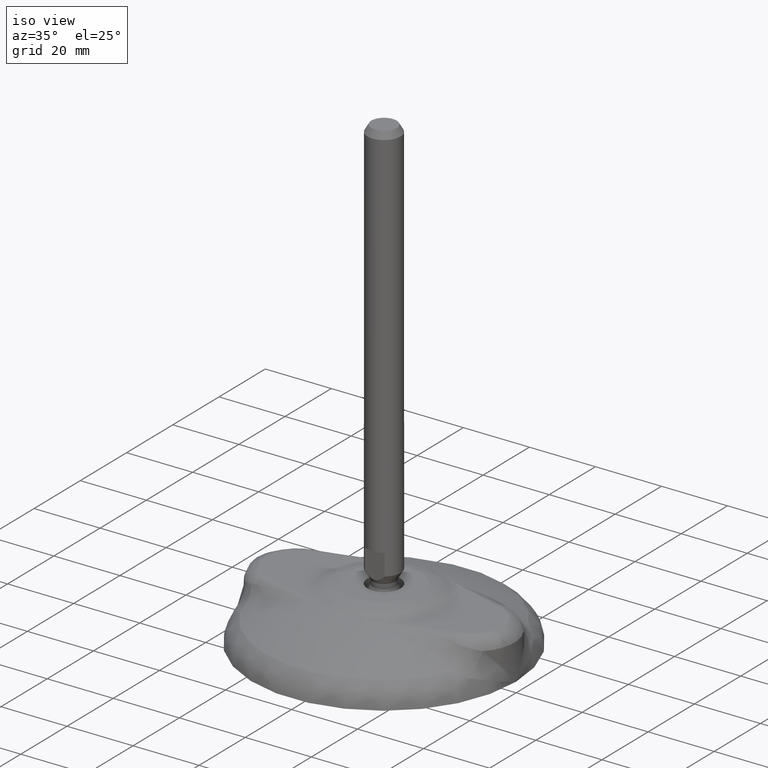
[diagram: clean part render]
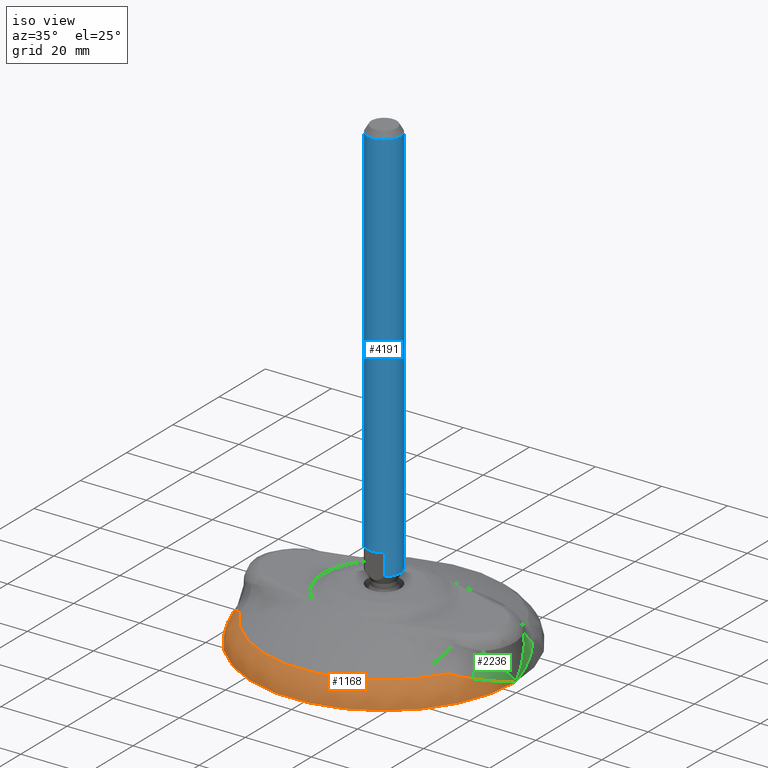
[diagram: same view with three faces highlighted in distinct colors, each labeled with its STEP entity id]
A machine part, iso view with three faces highlighted in distinct colors.
Their STEP definitions:

[orange] entity #1168 — the highlighted face is a freeform B-spline surface patch.
#177=CARTESIAN_POINT('',(-39.994799659699105,-0.004054481562221,0.288359025109601));
#178=VERTEX_POINT('',#177);
#319=CARTESIAN_POINT('',(39.994937684437694,-0.001630387515108,0.284555168900830));
#320=VERTEX_POINT('',#319);
#548=CARTESIAN_POINT('',(-31.670608063735905,-17.322779333985757,6.870353843586874));
#549=VERTEX_POINT('',#548);
#579=CARTESIAN_POINT('',(31.670607779879436,-17.322778184763369,6.870358049720028));
#580=VERTEX_POINT('',#579);
#581=CARTESIAN_POINT('',(-0.000000912443235,-4.555379E-014,6.870355946653386));
#582=DIRECTION('',(0.000000066404364,0.0,-0.999999999999998));
#583=DIRECTION('',(-0.999999999999998,0.0,-0.000000066404364));
#584=AXIS2_PLACEMENT_3D('',#581,#582,#583);
#585=CIRCLE('',#584,36.098560498766552);
#586=EDGE_CURVE('',#580,#549,#585,.T.);
#914=CARTESIAN_POINT('',(-36.097677786222157,0.042015834307452,6.870865750432663));
#915=CARTESIAN_POINT('',(-39.840458185321054,0.046372237792590,4.638715678773673));
#916=CARTESIAN_POINT('',(-39.994944492881586,0.046552052222002,0.283597771646417));
#917=CARTESIAN_POINT('',(-36.139742553254401,-36.097701782090240,6.870865747639376));
#918=CARTESIAN_POINT('',(-39.886884429418323,-39.840484864727237,4.638715675690766));
#919=CARTESIAN_POINT('',(-40.041550760824805,-39.994971566133941,0.283597768551557));
#920=CARTESIAN_POINT('',(-0.000000456255627,-36.097701782090240,6.870868147475966));
#921=CARTESIAN_POINT('',(-0.000000308031138,-39.840484864727244,4.638718324353939));
#922=CARTESIAN_POINT('',(-0.000000018832304,-39.994971566133934,0.283600427485268));
#923=CARTESIAN_POINT('',(36.097701325834485,-36.097701782090240,6.870870544520893));
#924=CARTESIAN_POINT('',(39.840484556695955,-39.840484864727230,4.638720969935996));
#925=CARTESIAN_POINT('',(39.994971547301496,-39.994971566133941,0.283603083325918));
#926=CARTESIAN_POINT('',(36.097701325834493,-4.555379E-014,6.870870544520893));
#927=CARTESIAN_POINT('',(39.840484556695976,-4.555379E-014,4.638720969935998));
#928=CARTESIAN_POINT('',(39.994971547301503,-4.555379E-014,0.283603083325918));
#929=CARTESIAN_POINT('',(36.097701325834493,0.022576344058838,6.870870544520892));
#930=CARTESIAN_POINT('',(39.840484556695976,0.024917167835417,4.638720969935998));
#931=CARTESIAN_POINT('',(39.994971547301503,0.025013787419249,0.283603083325918));
#932=CARTESIAN_POINT('',(36.097673086301981,0.045152670456060,6.870870544519018));
#933=CARTESIAN_POINT('',(39.840453389153097,0.049834316177972,4.638720969933928));
#934=CARTESIAN_POINT('',(39.994940258902396,0.050027555270050,0.283603083323840));
#942=(BOUNDED_SURFACE()B_SPLINE_SURFACE(2,2,((#914,#917,#920,#923,#926,#929,#932),(#915,#918,#921,#924,#927,#930,#933),(#916,#919,#922,#925,#928,#931,#934)),.UNSPECIFIED.,.F.,.F.,.U.)B_SPLINE_SURFACE_WITH_KNOTS((3,3),(3,2,2,3),(0.837442027841241,0.993776972517607),(-0.000205808497092,0.250000000000000,0.500000000000000,0.500221063262704),.UNSPECIFIED.)GEOMETRIC_REPRESENTATION_ITEM()RATIONAL_B_SPLINE_SURFACE(((0.867192704879187,0.612693037110581,0.866774368104219,0.612902033445178,0.866774368104219,0.866549880717780,0.866325790338653),(0.812133865697158,0.573792609087584,0.811742089497582,0.573988336058278,0.811742089497582,0.811531855015761,0.811321992334903),(0.986257276852889,0.696815094185544,0.985781502914565,0.697052785479155,0.985781502914565,0.985526193665314,0.985271335932029)))REPRESENTATION_ITEM('')SURFACE());
#943=CARTESIAN_POINT('',(35.917151791878510,-13.085916496707327,5.022730977829577));
#944=VERTEX_POINT('',#943);
#945=CARTESIAN_POINT('',(39.994589116937156,-0.001630373305833,0.294185484126491));
#946=CARTESIAN_POINT('',(39.994578794291144,-0.003775342110296,0.294460711145427));
#947=CARTESIAN_POINT('',(39.994549811739695,-0.009797699998520,0.295233456933196));
#948=CARTESIAN_POINT('',(39.994429766902307,-0.021133023912247,0.298365150122567));
#949=CARTESIAN_POINT('',(39.994246742328400,-0.037488658858534,0.302940454036667));
#950=CARTESIAN_POINT('',(39.993971418165685,-0.058791297908294,0.309495467780549));
#951=CARTESIAN_POINT('',(39.993599030595774,-0.085072620933659,0.317824874781254));
#952=CARTESIAN_POINT('',(39.993110725127053,-0.116319078832902,0.328016586779546));
#953=CARTESIAN_POINT('',(39.992488826162244,-0.152534278985245,0.340043068108462));
#954=CARTESIAN_POINT('',(39.991711077286524,-0.193715839638055,0.353915540871884));
#955=CARTESIAN_POINT('',(39.990752620624882,-0.239863374036297,0.369631028691963));
#956=CARTESIAN_POINT('',(39.989585316457912,-0.290975710019553,0.387190598710481));
#957=CARTESIAN_POINT('',(39.988177959683455,-0.347051721692248,0.406593603822804));
#958=CARTESIAN_POINT('',(39.986496209407768,-0.408089997808525,0.427839613111029));
#959=CARTESIAN_POINT('',(39.984502612126320,-0.474088883225421,0.450927848792527));
#960=CARTESIAN_POINT('',(39.982156597362049,-0.545046404003285,0.475857374456878));
#961=CARTESIAN_POINT('',(39.979414483153882,-0.620960226589611,0.502627036147388));
#962=CARTESIAN_POINT('',(39.976229479821292,-0.701827603826643,0.531235468715596));
#963=CARTESIAN_POINT('',(39.972551695533831,-0.787645321508422,0.561681075795572));
#964=CARTESIAN_POINT('',(39.968328142700003,-0.878409640994336,0.593962012774361));
#965=CARTESIAN_POINT('',(39.963502745580641,-0.974116239003251,0.628076165072041));
#966=CARTESIAN_POINT('',(39.958016349143755,-1.074760144130645,0.664021124666243));
#967=CARTESIAN_POINT('',(39.951806729309439,-1.180335670156437,0.701794164413751));
#968=CARTESIAN_POINT('',(39.944808604710410,-1.290836346094839,0.741392210572543));
#969=CARTESIAN_POINT('',(39.936953650111903,-1.406254842998071,0.782811813590602));
#970=CARTESIAN_POINT('',(39.928170511640481,-1.526582897528190,0.826049117270313));
#971=CARTESIAN_POINT('',(39.918384823979643,-1.651811232326264,0.871099826370055));
#972=CARTESIAN_POINT('',(39.907519229697343,-1.781929473217039,0.917959172695564));
#973=CARTESIAN_POINT('',(39.895493400875957,-1.916926063296777,0.966621879722005));
#974=CARTESIAN_POINT('',(39.882224063223887,-2.056788173960761,1.017082125781165));
#975=CARTESIAN_POINT('',(39.867625022851357,-2.201501612935326,1.069333505845092));
#976=CARTESIAN_POINT('',(39.851607195901295,-2.351050729388254,1.123368991934905));
#977=CARTESIAN_POINT('',(39.834078641229269,-2.505418316200386,1.179180892182307));
#978=CARTESIAN_POINT('',(39.814944596333490,-2.664585509490618,1.236760808572187));
#979=CARTESIAN_POINT('',(39.794107516738876,-2.828531685496158,1.296099593394334));
#980=CARTESIAN_POINT('',(39.771467119044900,-2.997234354920324,1.357187304434346));
#981=CARTESIAN_POINT('',(39.746920427849886,-3.170669054870840,1.420013158934826));
#982=CARTESIAN_POINT('',(39.720361826767721,-3.348809238522858,1.484565486359981));
#983=CARTESIAN_POINT('',(39.691683113756859,-3.531626162652795,1.550831679999504));
#984=CARTESIAN_POINT('',(39.660773560982392,-3.719088773201277,1.618798147449555));
#985=CARTESIAN_POINT('',(39.627519979435291,-3.911163589037488,1.688450260009454));
#986=CARTESIAN_POINT('',(39.591806788529780,-4.107814584106121,1.759772301049246));
#987=CARTESIAN_POINT('',(39.553516090917853,-4.309003068171236,1.832747413346655));
#988=CARTESIAN_POINT('',(39.512527752687355,-4.514687566310438,1.907357545633959));
#989=CARTESIAN_POINT('',(39.468719489392321,-4.724823697622541,1.983583397669625));
#990=CARTESIAN_POINT('',(39.421966957265759,-4.939364052487084,2.061404366748275));
#991=CARTESIAN_POINT('',(39.372143853193364,-5.158258072135807,2.140798484683688));
#992=CARTESIAN_POINT('',(39.319122010702891,-5.381451917315052,2.221742387864560));
#993=CARTESIAN_POINT('',(39.262771542128895,-5.608888378363654,2.304211156506359));
#994=CARTESIAN_POINT('',(39.202960834773755,-5.840506626623872,2.388178654620391));
#995=CARTESIAN_POINT('',(39.139557141689593,-6.076242578783965,2.473615940499207));
#996=CARTESIAN_POINT('',(39.072424919551537,-6.316026908168721,2.560497094769494));
#997=CARTESIAN_POINT('',(38.971098461168339,-6.663951221825771,2.686497715144470));
#998=CARTESIAN_POINT('',(38.831581443015295,-7.113591584428376,2.849370454422119));
#999=CARTESIAN_POINT('',(38.648152633074432,-7.657716837424867,3.046657502481369));
#1000=CARTESIAN_POINT('',(38.455304699302488,-8.187659258071031,3.238945084444731));
#1001=CARTESIAN_POINT('',(38.253809730468845,-8.703354956919954,3.426205185977205));
#1002=CARTESIAN_POINT('',(38.044425140063240,-9.204778236478026,3.608411973977850));
#1003=CARTESIAN_POINT('',(37.827889816925030,-9.691930351409472,3.785552952252576));
#1004=CARTESIAN_POINT('',(37.604924426128335,-10.164840422514501,3.957625451602952));
#1005=CARTESIAN_POINT('',(37.376228533846252,-10.623561842996700,4.124636462912229));
#1006=CARTESIAN_POINT('',(37.142486920723506,-11.068174808991611,4.286603342787527));
#1007=CARTESIAN_POINT('',(36.904344016120362,-11.498769489560352,4.443548026122492));
#1008=CARTESIAN_POINT('',(36.662493869710246,-11.915498597688220,4.595515606997599));
#1009=CARTESIAN_POINT('',(36.417353508697609,-12.318379715670639,4.742504741492684));
#1010=CARTESIAN_POINT('',(36.170240109788622,-12.708000770013792,4.884716341172736));
#1011=CARTESIAN_POINT('',(36.000854138562211,-12.960930746933759,4.977086243768875));
#1012=CARTESIAN_POINT('',(35.917151791878510,-13.085916496707327,5.022730977829577));
#1013=B_SPLINE_CURVE_WITH_KNOTS('',3,(#945,#946,#947,#948,#949,#950,#951,#952,#953,#954,#955,#956,#957,#958,#959,#960,#961,#962,#963,#964,#965,#966,#967,#968,#969,#970,#971,#972,#973,#974,#975,#976,#977,#978,#979,#980,#981,#982,#983,#984,#985,#986,#987,#988,#989,#990,#991,#992,#993,#994,#995,#996,#997,#998,#999,#1000,#1001,#1002,#1003,#1004,#1005,#1006,#1007,#1008,#1009,#1010,#1011,#1012),.UNSPECIFIED.,.F.,.U.,(4,1,1,1,1,1,1,1,1,1,1,1,1,1,1,1,1,1,1,1,1,1,1,1,1,1,1,1,1,1,1,1,1,1,1,1,1,1,1,1,1,1,1,1,1,1,1,1,1,1,1,1,1,1,1,1,1,1,1,1,1,1,1,1,1,4),(0.0,0.000441424536722,0.001239373055334,0.002396602806219,0.003913909787681,0.005791627523909,0.008029923170156,0.010628888389084,0.013588574719513,0.016909009539745,0.020590203996008,0.024632157169281,0.029034858304326,0.033798287958282,0.038922418503912,0.044407214222335,0.050252631118681,0.056458616539899,0.063025108643545,0.069952035748680,0.077239315589233,0.084886854483666,0.092894546430437,0.101262272136013,0.109989897980413,0.119077274923958,0.128524237358088,0.138330601902531,0.148496166150738,0.159020707365192,0.169903981124027,0.181145719920352,0.192745631715501,0.204703398447520,0.217018674496120,0.229691085105414,0.242720224765794,0.256105655556291,0.269846905449002,0.283943466577045,0.298394793467807,0.313200301243188,0.328359363788782,0.343871311893987,0.359735431365195,0.375950961114354,0.392517091225346,0.409432961000731,0.426697656991652,0.444310211013765,0.462269598152309,0.480574734759569,0.522688947668613,0.564032291102323,0.604603575254620,0.644402063304159,0.683427448708093,0.721679832593712,0.759159701317396,0.795867904254922,0.831805631881928,0.866974394198223,0.901375999544788,0.935012533857738,0.967886340399082,1.0),.UNSPECIFIED.);
#1014=EDGE_CURVE('',#320,#944,#1013,.T.);
#1015=ORIENTED_EDGE('',*,*,#1014,.T.);
#1016=CARTESIAN_POINT('',(35.916735784362238,-13.085371789620771,5.023446625199316));
#1017=CARTESIAN_POINT('',(35.876514597854943,-13.144149496412410,5.045081441711504));
#1018=CARTESIAN_POINT('',(35.796118532098177,-13.261637238336553,5.088326166245761));
#1019=CARTESIAN_POINT('',(35.672876082280318,-13.435704932204811,5.153636532175320));
#1020=CARTESIAN_POINT('',(35.547783031359693,-13.608021931596600,5.219185886687884));
#1021=CARTESIAN_POINT('',(35.420646079479567,-13.778414151652118,5.284979708441273));
#1022=CARTESIAN_POINT('',(35.291519003517386,-13.946891815340274,5.350976355221589));
#1023=CARTESIAN_POINT('',(35.160390173190109,-14.113415794821810,5.417145724732315));
#1024=CARTESIAN_POINT('',(35.027266168457416,-14.277960140991311,5.483453551903688));
#1025=CARTESIAN_POINT('',(34.892149440826067,-14.440495382828539,5.549865601501030));
#1026=CARTESIAN_POINT('',(34.755044325921162,-14.600993034344871,5.616346528359825));
#1027=CARTESIAN_POINT('',(34.615955441080523,-14.759424382695936,5.682860206348782));
#1028=CARTESIAN_POINT('',(34.474888236265180,-14.915760982887099,5.749369510221007));
#1029=CARTESIAN_POINT('',(34.331848536046493,-15.069974043258640,5.815836822145867));
#1030=CARTESIAN_POINT('',(34.186843964800090,-15.222036545771061,5.882222193399867));
#1031=CARTESIAN_POINT('',(34.039878856936397,-15.371915556336583,5.948490152177567));
#1032=CARTESIAN_POINT('',(33.866858595806917,-15.543518112934331,6.025288034326993));
#1033=CARTESIAN_POINT('',(33.663169605473385,-15.738435343871419,6.113970595007638));
#1034=CARTESIAN_POINT('',(33.423826558803398,-15.957807111929981,6.215550718029071));
#1035=CARTESIAN_POINT('',(33.169814084883441,-16.180704956487187,6.320265189929468));
#1036=CARTESIAN_POINT('',(32.900777171958509,-16.406521078845930,6.427617772479107));
#1037=CARTESIAN_POINT('',(32.616422930727325,-16.634678425271581,6.537090537980523));
#1038=CARTESIAN_POINT('',(32.316310824492831,-16.864374005675707,6.648026804304553));
#1039=CARTESIAN_POINT('',(32.000673069939566,-17.095542071717404,6.760123357137601));
#1040=CARTESIAN_POINT('',(31.781769812344976,-17.246247786274175,6.833232326886680));
#1041=CARTESIAN_POINT('',(31.670607779879411,-17.322778184763393,6.870358049720013));
#1042=B_SPLINE_CURVE_WITH_KNOTS('',3,(#1016,#1017,#1018,#1019,#1020,#1021,#1022,#1023,#1024,#1025,#1026,#1027,#1028,#1029,#1030,#1031,#1032,#1033,#1034,#1035,#1036,#1037,#1038,#1039,#1040,#1041),.UNSPECIFIED.,.F.,.U.,(4,1,1,1,1,1,1,1,1,1,1,1,1,1,1,1,1,1,1,1,1,1,1,4),(0.0,0.035373850503659,0.070706974560429,0.105999673253920,0.141252249346419,0.176465007826128,0.211638256473019,0.246772306443128,0.281867472871038,0.316924075490134,0.351942439270407,0.386922895073285,0.421865780323108,0.456771439694793,0.491640225817075,0.526472499990806,0.578191573821400,0.632082970081042,0.688130107304453,0.746314652628713,0.806616542191684,0.869013996996542,0.933483537529760,1.0),.UNSPECIFIED.);
#1043=EDGE_CURVE('',#944,#580,#1042,.T.);
#1044=ORIENTED_EDGE('',*,*,#1043,.T.);
#1045=ORIENTED_EDGE('',*,*,#586,.T.);
#1046=CARTESIAN_POINT('',(-35.916732323432420,-13.085377096656170,5.023444411221749));
#1047=VERTEX_POINT('',#1046);
#1048=CARTESIAN_POINT('',(-31.670608063735870,-17.322779333985739,6.870353843586875));
#1049=CARTESIAN_POINT('',(-31.723028936329378,-17.286942518980219,6.852987518887892));
#1050=CARTESIAN_POINT('',(-31.827618892272085,-17.215441021253930,6.818338283854393));
#1051=CARTESIAN_POINT('',(-31.982342110801405,-17.106312372084609,6.765582989664729));
#1052=CARTESIAN_POINT('',(-32.135001131881459,-16.996177350612538,6.712469556838703));
#1053=CARTESIAN_POINT('',(-32.285469303612963,-16.884918782876898,6.658975334348497));
#1054=CARTESIAN_POINT('',(-32.433780997909921,-16.772613772995495,6.605162083472123));
#1055=CARTESIAN_POINT('',(-32.579929116714261,-16.659287737969279,6.551068021612487));
#1056=CARTESIAN_POINT('',(-32.723918909503617,-16.544979787721608,6.496736535462840));
#1057=CARTESIAN_POINT('',(-32.865753618135741,-16.429725296728446,6.442208544615822));
#1058=CARTESIAN_POINT('',(-33.005438252285160,-16.313560500502724,6.387524533513793));
#1059=CARTESIAN_POINT('',(-33.142978543378042,-16.196521236745998,6.332724013337836));
#1060=CARTESIAN_POINT('',(-33.278381180608008,-16.078643245171719,6.277845668282043));
#1061=CARTESIAN_POINT('',(-33.411653706130323,-15.959962054576369,6.222927320803597));
#1062=CARTESIAN_POINT('',(-33.542804500978875,-15.840512981289340,6.168005945896228));
#1063=CARTESIAN_POINT('',(-33.671842747023547,-15.720331099628320,6.113117673183367));
#1064=CARTESIAN_POINT('',(-33.798778395498083,-15.599451221379772,6.058297793055269));
#1065=CARTESIAN_POINT('',(-33.923622134024342,-15.477907874431679,6.003580762495993));
#1066=CARTESIAN_POINT('',(-34.046385354319440,-15.355735283151400,5.949000211712625));
#1067=CARTESIAN_POINT('',(-34.167080120039678,-15.232967349784190,5.894588951231966));
#1068=CARTESIAN_POINT('',(-34.285719134942497,-15.109637637032501,5.840378979510607));
#1069=CARTESIAN_POINT('',(-34.402315711352429,-14.985779351739684,5.786401491007231));
#1070=CARTESIAN_POINT('',(-34.516883738954405,-14.861425329655258,5.732686884694077));
#1071=CARTESIAN_POINT('',(-34.629437653978279,-14.736608021284558,5.679264772964286));
#1072=CARTESIAN_POINT('',(-34.739992408631757,-14.611359478668110,5.626163990950682));
#1073=CARTESIAN_POINT('',(-34.848563441403755,-14.485711343530379,5.573412606066417));
#1074=CARTESIAN_POINT('',(-34.955166646029731,-14.359694835041770,5.521037928330268));
#1075=CARTESIAN_POINT('',(-35.059818347361919,-14.233340743549610,5.469066519270506));
#1076=CARTESIAN_POINT('',(-35.162535253744004,-14.106679406645901,5.417524207435323));
#1077=CARTESIAN_POINT('',(-35.263334498354453,-13.979740754811228,5.366436080707032));
#1078=CARTESIAN_POINT('',(-35.362233353802878,-13.852554103978850,5.315826565479902));
#1079=CARTESIAN_POINT('',(-35.459250156802739,-13.725148887642154,5.265719185729997));
#1080=CARTESIAN_POINT('',(-35.554400762290733,-13.597551919985738,5.216137506185875));
#1081=CARTESIAN_POINT('',(-35.647711523058270,-13.469797484119272,5.167101699824052));
#1082=CARTESIAN_POINT('',(-35.739171198338170,-13.341890026140410,5.118641287229139));
#1083=CARTESIAN_POINT('',(-35.828908546768488,-13.213941993135569,5.070748114994332));
#1084=CARTESIAN_POINT('',(-35.887523090398183,-13.128136382868519,5.039177108505943));
#1085=CARTESIAN_POINT('',(-35.916732323258231,-13.085377096592723,5.023444411072167));
#1086=B_SPLINE_CURVE_WITH_KNOTS('',3,(#1048,#1049,#1050,#1051,#1052,#1053,#1054,#1055,#1056,#1057,#1058,#1059,#1060,#1061,#1062,#1063,#1064,#1065,#1066,#1067,#1068,#1069,#1070,#1071,#1072,#1073,#1074,#1075,#1076,#1077,#1078,#1079,#1080,#1081,#1082,#1083,#1084,#1085),.UNSPECIFIED.,.F.,.U.,(4,1,1,1,1,1,1,1,1,1,1,1,1,1,1,1,1,1,1,1,1,1,1,1,1,1,1,1,1,1,1,1,1,1,1,4),(0.0,0.031290599980310,0.062430904169401,0.093419862652255,0.124256443634919,0.154939634125117,0.185468440582473,0.215841889539667,0.246059028194791,0.276118924976263,0.306020670080886,0.335763375986042,0.365346177936943,0.394768234409823,0.424028727552141,0.453126863600510,0.482061873277657,0.510833012168949,0.539439561079985,0.567880826375700,0.596156140302382,0.624264861293413,0.652206374259660,0.679980090865740,0.707585449792869,0.735021916989492,0.762288985910598,0.789386177746738,0.816313041643676,0.843069154913691,0.869654123239539,0.896067580871960,0.922309190821746,0.948378645047377,0.974275664639015,1.0),.UNSPECIFIED.);
#1087=EDGE_CURVE('',#549,#1047,#1086,.T.);
#1088=ORIENTED_EDGE('',*,*,#1087,.T.);
#1089=CARTESIAN_POINT('',(-35.917149673382617,-13.085919818331677,5.022728032571479));
#1090=CARTESIAN_POINT('',(-35.962176961250137,-13.019064296283641,4.998311050592236));
#1091=CARTESIAN_POINT('',(-36.052808600712801,-12.884496421693738,4.949164154966685));
#1092=CARTESIAN_POINT('',(-36.186814981299840,-12.679701804975460,4.874390840061677));
#1093=CARTESIAN_POINT('',(-36.320399411793787,-12.471099418949169,4.798243930048846));
#1094=CARTESIAN_POINT('',(-36.453269497406076,-12.258541253326761,4.720672017294367));
#1095=CARTESIAN_POINT('',(-36.585389572585207,-12.042034883828387,4.641678627300977));
#1096=CARTESIAN_POINT('',(-36.716651657377867,-11.821546851754791,4.561252933578591));
#1097=CARTESIAN_POINT('',(-36.846965175745694,-11.597056617195850,4.479388768975007));
#1098=CARTESIAN_POINT('',(-36.976232475080046,-11.368541925183699,4.396079465960241));
#1099=CARTESIAN_POINT('',(-37.104355518522091,-11.135982893789560,4.311319294596030));
#1100=CARTESIAN_POINT('',(-37.231234073551789,-10.899360994628239,4.225103100385690));
#1101=CARTESIAN_POINT('',(-37.356766223885174,-10.658659428297630,4.137426433580025));
#1102=CARTESIAN_POINT('',(-37.480848250881849,-10.413863120610049,4.048285544718832));
#1103=CARTESIAN_POINT('',(-37.603374690305444,-10.164958823478010,3.957677416933972));
#1104=CARTESIAN_POINT('',(-37.724238344779344,-9.911935188403973,3.865599788494999));
#1105=CARTESIAN_POINT('',(-37.843330311953039,-9.654782848494003,3.772051178244879));
#1106=CARTESIAN_POINT('',(-37.960540012116446,-9.393494499075789,3.677030910520740));
#1107=CARTESIAN_POINT('',(-38.075755219875155,-9.128064979619854,3.580539140230297));
#1108=CARTESIAN_POINT('',(-38.188862098491327,-8.858491355726970,3.482576878772851));
#1109=CARTESIAN_POINT('',(-38.299745238338268,-8.584773002870017,3.383146017203082));
#1110=CARTESIAN_POINT('',(-38.408287695557682,-8.306911685720971,3.282249360451653));
#1111=CARTESIAN_POINT('',(-38.514371045842317,-8.024911655771875,3.179890620063967));
#1112=CARTESIAN_POINT('',(-38.617875397260079,-7.738779680694917,3.076074564547355));
#1113=CARTESIAN_POINT('',(-38.718679575064790,-7.448525332951576,2.970806572602083));
#1114=CARTESIAN_POINT('',(-38.816660671882893,-7.154160295920289,2.864094449300676));
#1115=CARTESIAN_POINT('',(-38.911696019936372,-6.855701391930566,2.755941668145498));
#1116=CARTESIAN_POINT('',(-39.005620603228877,-6.546696121656035,2.644032313846900));
#1117=CARTESIAN_POINT('',(-39.096929853025770,-6.230870162246013,2.529647170704715));
#1118=CARTESIAN_POINT('',(-39.184334588339077,-5.912026485180982,2.414099213845856));
#1119=CARTESIAN_POINT('',(-39.265197091810577,-5.600561591383905,2.301185940594545));
#1120=CARTESIAN_POINT('',(-39.339840420289910,-5.296634223549400,2.190971053341856));
#1121=CARTESIAN_POINT('',(-39.408581206133178,-5.000388802474655,2.083518619186079));
#1122=CARTESIAN_POINT('',(-39.471731045902672,-4.711959148354576,1.978886395274652));
#1123=CARTESIAN_POINT('',(-39.529595511405581,-4.431468192821669,1.877127861334270));
#1124=CARTESIAN_POINT('',(-39.582473820733760,-4.159028723970870,1.778292008887903));
#1125=CARTESIAN_POINT('',(-39.630658386372957,-3.894743865189164,1.682423701510625));
#1126=CARTESIAN_POINT('',(-39.674434439279558,-3.638707618590644,1.589563882947126));
#1127=CARTESIAN_POINT('',(-39.714079675779807,-3.391005385731545,1.499749817899860));
#1128=CARTESIAN_POINT('',(-39.749863938711300,-3.151714485654880,1.413015317632702));
#1129=CARTESIAN_POINT('',(-39.782048927685672,-2.920904663037305,1.329390962123933));
#1130=CARTESIAN_POINT('',(-39.810887937574634,-2.698638586372834,1.248904315318415));
#1131=CARTESIAN_POINT('',(-39.836625623254392,-2.484972334483786,1.171580133940735));
#1132=CARTESIAN_POINT('',(-39.859497788935215,-2.279955870240540,1.097440569368410));
#1133=CARTESIAN_POINT('',(-39.879731200361753,-2.083633500384740,1.026505362337367));
#1134=CARTESIAN_POINT('',(-39.897543418221332,-1.896044320500336,0.958792030205344));
#1135=CARTESIAN_POINT('',(-39.913142651133079,-1.717222644284597,0.894316046521076));
#1136=CARTESIAN_POINT('',(-39.926727626641707,-1.547198416379002,0.833091012655473));
#1137=CARTESIAN_POINT('',(-39.938487478691002,-1.385997608130997,0.775128821192704));
#1138=CARTESIAN_POINT('',(-39.948601650105402,-1.233642595729048,0.720439810902894));
#1139=CARTESIAN_POINT('',(-39.957239808693920,-1.090152520357294,0.669032912504589));
#1140=CARTESIAN_POINT('',(-39.964561775584606,-0.955543629774408,0.620915786167911));
#1141=CARTESIAN_POINT('',(-39.970717464715392,-0.829829602031021,0.576094945162447));
#1142=CARTESIAN_POINT('',(-39.975846831682951,-0.713021848190379,0.534575881070813));
#1143=CARTESIAN_POINT('',(-39.980079832946565,-0.605129804570456,0.496363133569895));
#1144=CARTESIAN_POINT('',(-39.983536387527387,-0.506161180682492,0.461460485190887));
#1145=CARTESIAN_POINT('',(-39.986326363081801,-0.416122276851832,0.429870672750924));
#1146=CARTESIAN_POINT('',(-39.988549512125566,-0.335018006908986,0.401596564052576));
#1147=CARTESIAN_POINT('',(-39.990295594363765,-0.262852805140978,0.376637503882872));
#1148=CARTESIAN_POINT('',(-39.991643942725901,-0.199628725869187,0.355000545572220));
#1149=CARTESIAN_POINT('',(-39.992664766935953,-0.145352155366295,0.336665563897146));
#1150=CARTESIAN_POINT('',(-39.993415337297613,-0.100014987828842,0.321686537357202));
#1151=CARTESIAN_POINT('',(-39.993950915796098,-0.063649070467399,0.309900783075759));
#1152=CARTESIAN_POINT('',(-39.994296099580325,-0.036182799804926,0.301690636835662));
#1153=CARTESIAN_POINT('',(-39.994515471518739,-0.017784503806336,0.296104707088683));
#1154=CARTESIAN_POINT('',(-39.994573360257405,-0.008276593849564,0.294583937189227));
#1155=CARTESIAN_POINT('',(-39.994592811777537,-0.005081787635732,0.294072934755813));
#1156=B_SPLINE_CURVE_WITH_KNOTS('',3,(#1089,#1090,#1091,#1092,#1093,#1094,#1095,#1096,#1097,#1098,#1099,#1100,#1101,#1102,#1103,#1104,#1105,#1106,#1107,#1108,#1109,#1110,#1111,#1112,#1113,#1114,#1115,#1116,#1117,#1118,#1119,#1120,#1121,#1122,#1123,#1124,#1125,#1126,#1127,#1128,#1129,#1130,#1131,#1132,#1133,#1134,#1135,#1136,#1137,#1138,#1139,#1140,#1141,#1142,#1143,#1144,#1145,#1146,#1147,#1148,#1149,#1150,#1151,#1152,#1153,#1154,#1155),.UNSPECIFIED.,.F.,.U.,(4,1,1,1,1,1,1,1,1,1,1,1,1,1,1,1,1,1,1,1,1,1,1,1,1,1,1,1,1,1,1,1,1,1,1,1,1,1,1,1,1,1,1,1,1,1,1,1,1,1,1,1,1,1,1,1,1,1,1,1,1,1,1,1,4),(0.000000170769807,0.017209798138404,0.034639985304641,0.052290989785058,0.070163221350214,0.088257070385878,0.106572907010422,0.125111080178976,0.143871916774747,0.162855720687982,0.182062771883013,0.201493325453894,0.221147610669186,0.241025830006360,0.261128158176559,0.281454741140186,0.302005695114084,0.322781105570964,0.343781026231795,0.365005478051948,0.386454448201876,0.408127889043189,0.430025717100946,0.452147812033191,0.474494015598541,0.497064130622953,0.519857919966638,0.544335972621778,0.568190483080636,0.591418907781868,0.614018889054690,0.635988246436514,0.657324968054555,0.678027202095369,0.698093248384277,0.717521550095140,0.736310685609197,0.754459360540281,0.771966399942205,0.788830740712936,0.805051424208864,0.820627589081510,0.835558464348003,0.849843362705955,0.863481674102790,0.876472859569256,0.888816445326872,0.900512017179559,0.911559215200870,0.921957728730333,0.931707291696156,0.940807678287799,0.949258699012285,0.957060197185954,0.964212045944342,0.970714145909104,0.976566423757357,0.981768832151972,0.986321351948253,0.990223998658090,0.993476837920693,0.996080023020091,0.998033897801086,0.999339358959994,1.0),.UNSPECIFIED.);
#1157=EDGE_CURVE('',#1047,#178,#1156,.T.);
#1158=ORIENTED_EDGE('',*,*,#1157,.T.);
#1159=CARTESIAN_POINT('',(-0.000000037791057,-4.555379E-014,0.284552513062425));
#1160=DIRECTION('',(0.000000066404364,0.0,-0.999999999999998));
#1161=DIRECTION('',(-0.999999999999998,0.0,-0.000000066404364));
#1162=AXIS2_PLACEMENT_3D('',#1159,#1160,#1161);
#1163=CIRCLE('',#1162,39.994937736564559);
#1164=EDGE_CURVE('',#320,#178,#1163,.T.);
#1165=ORIENTED_EDGE('',*,*,#1164,.F.);
#1166=EDGE_LOOP('',(#1015,#1044,#1045,#1088,#1158,#1165));
#1167=FACE_OUTER_BOUND('',#1166,.T.);
#1168=ADVANCED_FACE('',(#1167),#942,.T.);

[blue] entity #4191 — the highlighted cylindrical surface (bore or boss wall) has radius 5 mm, axis along (0, 0, -1).
#4073=CARTESIAN_POINT('',(5.684342E-014,-0.000001529278265,140.177265635112150));
#4074=DIRECTION('',(0.0,0.0,-1.0));
#4075=DIRECTION('',(-1.0,-1.000000E-008,0.0));
#4076=AXIS2_PLACEMENT_3D('',#4073,#4074,#4075);
#4077=CYLINDRICAL_SURFACE('',#4076,5.000000659909880);
#4078=CARTESIAN_POINT('',(-3.000000000000051,-4.000001529278261,20.691135423767083));
#4079=VERTEX_POINT('',#4078);
#4080=CARTESIAN_POINT('',(-4.999999999999974,-0.000001529278265,20.691135423767083));
#4081=VERTEX_POINT('',#4080);
#4082=CARTESIAN_POINT('',(9.811804E-014,-0.000001529278265,20.691135423767083));
#4083=DIRECTION('',(0.0,0.0,-1.0));
#4084=DIRECTION('',(-1.0,0.0,0.0));
#4085=AXIS2_PLACEMENT_3D('',#4082,#4083,#4084);
#4086=CIRCLE('',#4085,5.000000000000072);
#4087=EDGE_CURVE('',#4079,#4081,#4086,.T.);
#4088=ORIENTED_EDGE('',*,*,#4087,.F.);
#4089=CARTESIAN_POINT('',(-3.000001099849599,-4.000001529278261,27.191135514648362));
#4090=VERTEX_POINT('',#4089);
#4091=CARTESIAN_POINT('',(-3.000001099849618,-4.000001529278261,20.691135423767083));
#4092=DIRECTION('',(0.0,0.0,1.0));
#4093=VECTOR('',#4092,6.500000090881279);
#4094=LINE('',#4091,#4093);
#4095=EDGE_CURVE('',#4079,#4090,#4094,.T.);
#4096=ORIENTED_EDGE('',*,*,#4095,.T.);
#4097=CARTESIAN_POINT('',(3.000001099849750,-4.000001529278261,27.191135514648362));
#4098=VERTEX_POINT('',#4097);
#4099=CARTESIAN_POINT('',(7.992238E-014,-0.000001529278245,27.191135514648352));
#4100=DIRECTION('',(0.0,0.0,1.0));
#4101=DIRECTION('',(0.0,-1.0,0.0));
#4102=AXIS2_PLACEMENT_3D('',#4099,#4100,#4101);
#4103=CIRCLE('',#4102,5.000000659909880);
#4104=EDGE_CURVE('',#4090,#4098,#4103,.T.);
#4105=ORIENTED_EDGE('',*,*,#4104,.T.);
#4106=CARTESIAN_POINT('',(3.000000000000197,-4.000001529278261,20.691135423767083));
#4107=VERTEX_POINT('',#4106);
#4108=CARTESIAN_POINT('',(3.000001099849731,-4.000001529278261,27.191135514648362));
#4109=DIRECTION('',(0.0,0.0,-1.0));
#4110=VECTOR('',#4109,6.500000090881279);
#4111=LINE('',#4108,#4110);
#4112=EDGE_CURVE('',#4098,#4107,#4111,.T.);
#4113=ORIENTED_EDGE('',*,*,#4112,.T.);
#4114=CARTESIAN_POINT('',(5.000000000000163,-0.000001529278265,20.691135423767083));
#4115=VERTEX_POINT('',#4114);
#4116=CARTESIAN_POINT('',(9.811804E-014,-0.000001529278265,20.691135423767083));
#4117=DIRECTION('',(0.0,0.0,-1.0));
#4118=DIRECTION('',(-1.0,0.0,0.0));
#4119=AXIS2_PLACEMENT_3D('',#4116,#4117,#4118);
#4120=CIRCLE('',#4119,5.000000000000072);
#4121=EDGE_CURVE('',#4115,#4107,#4120,.T.);
#4122=ORIENTED_EDGE('',*,*,#4121,.F.);
#4123=CARTESIAN_POINT('',(3.000000000000187,3.999998470721739,20.691135423767083));
#4124=VERTEX_POINT('',#4123);
#4125=CARTESIAN_POINT('',(9.811804E-014,-0.000001529278265,20.691135423767083));
#4126=DIRECTION('',(0.0,0.0,-1.0));
#4127=DIRECTION('',(-1.0,0.0,0.0));
#4128=AXIS2_PLACEMENT_3D('',#4125,#4126,#4127);
#4129=CIRCLE('',#4128,5.000000000000072);
#4130=EDGE_CURVE('',#4124,#4115,#4129,.T.);
#4131=ORIENTED_EDGE('',*,*,#4130,.F.);
#4132=CARTESIAN_POINT('',(3.000001099849742,3.999998470721739,27.191135514648352));
#4133=VERTEX_POINT('',#4132);
#4134=CARTESIAN_POINT('',(3.000001099849722,3.999998470721739,27.191135514648352));
#4135=DIRECTION('',(0.0,0.0,-1.0));
#4136=VECTOR('',#4135,6.500000090881269);
#4137=LINE('',#4134,#4136);
#4138=EDGE_CURVE('',#4133,#4124,#4137,.T.);
#4139=ORIENTED_EDGE('',*,*,#4138,.F.);
#4140=CARTESIAN_POINT('',(-3.000001099849589,3.999998470721739,27.191135514648352));
#4141=VERTEX_POINT('',#4140);
#4142=CARTESIAN_POINT('',(7.992238E-014,-0.000001529278245,27.191135514648352));
#4143=DIRECTION('',(0.0,0.0,-1.0));
#4144=DIRECTION('',(0.0,1.0,0.0));
#4145=AXIS2_PLACEMENT_3D('',#4142,#4143,#4144);
#4146=CIRCLE('',#4145,5.000000659909880);
#4147=EDGE_CURVE('',#4141,#4133,#4146,.T.);
#4148=ORIENTED_EDGE('',*,*,#4147,.F.);
#4149=CARTESIAN_POINT('',(-3.000000000000042,3.999998470721739,20.691135423767083));
#4150=VERTEX_POINT('',#4149);
#4151=CARTESIAN_POINT('',(-3.000001099849608,3.999998470721739,20.691135423767083));
#4152=DIRECTION('',(0.0,0.0,1.0));
#4153=VECTOR('',#4152,6.500000090881269);
#4154=LINE('',#4151,#4153);
#4155=EDGE_CURVE('',#4150,#4141,#4154,.T.);
#4156=ORIENTED_EDGE('',*,*,#4155,.F.);
#4157=CARTESIAN_POINT('',(9.811804E-014,-0.000001529278265,20.691135423767083));
#4158=DIRECTION('',(0.0,0.0,-1.0));
#4159=DIRECTION('',(-1.0,0.0,0.0));
#4160=AXIS2_PLACEMENT_3D('',#4157,#4158,#4159);
#4161=CIRCLE('',#4160,5.000000000000072);
#4162=EDGE_CURVE('',#4081,#4150,#4161,.T.);
#4163=ORIENTED_EDGE('',*,*,#4162,.F.);
#4164=CARTESIAN_POINT('',(-5.000001319819327,-0.000001529278265,140.177265625112140));
#4165=VERTEX_POINT('',#4164);
#4166=CARTESIAN_POINT('',(-5.000000659909823,-0.000001529278265,20.691135423767079));
#4167=DIRECTION('',(0.0,0.0,1.0));
#4168=VECTOR('',#4167,119.486130201345060);
#4169=LINE('',#4166,#4168);
#4170=EDGE_CURVE('',#4150,#4165,#4169,.T.);
#4171=ORIENTED_EDGE('',*,*,#4170,.T.);
#4172=CARTESIAN_POINT('',(5.000001319820091,-0.000001529278265,140.177265625112140));
#4173=VERTEX_POINT('',#4172);
#4174=CARTESIAN_POINT('',(4.045247E-013,-0.000001529278265,140.177265625112140));
#4175=DIRECTION('',(0.0,0.0,-1.0));
#4176=DIRECTION('',(-1.0,0.0,0.0));
#4177=AXIS2_PLACEMENT_3D('',#4174,#4175,#4176);
#4178=CIRCLE('',#4177,5.000001319819686);
#4179=EDGE_CURVE('',#4165,#4173,#4178,.T.);
#4180=ORIENTED_EDGE('',*,*,#4179,.T.);
#4181=CARTESIAN_POINT('',(4.045247E-013,-0.000001529278265,140.177265625112140));
#4182=DIRECTION('',(0.0,0.0,-1.0));
#4183=DIRECTION('',(-1.0,0.0,0.0));
#4184=AXIS2_PLACEMENT_3D('',#4181,#4182,#4183);
#4185=CIRCLE('',#4184,5.000001319819686);
#4186=EDGE_CURVE('',#4173,#4165,#4185,.T.);
#4187=ORIENTED_EDGE('',*,*,#4186,.T.);
#4188=ORIENTED_EDGE('',*,*,#4170,.F.);
#4189=EDGE_LOOP('',(#4088,#4096,#4105,#4113,#4122,#4131,#4139,#4148,#4156,#4163,#4171,#4180,#4187,#4188));
#4190=FACE_OUTER_BOUND('',#4189,.T.);
#4191=ADVANCED_FACE('',(#4190),#4077,.T.);

[green] entity #2236 — the highlighted face is a freeform B-spline surface patch.
#276=CARTESIAN_POINT('',(35.918091803432489,13.083374364953468,5.022714759792645));
#277=VERTEX_POINT('',#276);
#319=CARTESIAN_POINT('',(39.994937684437694,-0.001630387515108,0.284555168900830));
#320=VERTEX_POINT('',#319);
#321=CARTESIAN_POINT('',(35.918508037843040,13.083915621973015,5.022000162241688));
#322=CARTESIAN_POINT('',(35.963599869779003,13.016948770573315,4.997542330994991));
#323=CARTESIAN_POINT('',(36.054358770103754,12.882160760557943,4.948314655938464));
#324=CARTESIAN_POINT('',(36.188544707739773,12.677034771074242,4.873419598139916));
#325=CARTESIAN_POINT('',(36.322297188209824,12.468104832233568,4.797152274225418));
#326=CARTESIAN_POINT('',(36.455323408306882,12.255222521962327,4.719461147027239));
#327=CARTESIAN_POINT('',(36.587587910186542,12.038395718373479,4.640349890024151));
#328=CARTESIAN_POINT('',(36.718982720547274,11.817591155603161,4.559807779291212));
#329=CARTESIAN_POINT('',(36.849417334911927,11.592788521768970,4.477828763738155));
#330=CARTESIAN_POINT('',(36.978794166808427,11.363965786409057,4.394406289546244));
#331=CARTESIAN_POINT('',(37.107015259163731,11.131103298491059,4.309534742184512));
#332=CARTESIAN_POINT('',(37.233980468199299,10.894182763919011,4.223209083006219));
#333=CARTESIAN_POINT('',(37.359587976943047,10.653187621373831,4.135424978705198));
#334=CARTESIAN_POINT('',(37.483734176569172,10.408103038023301,4.046178796628213));
#335=CARTESIAN_POINT('',(37.606313723529084,10.158916010108500,3.955467636944178));
#336=CARTESIAN_POINT('',(37.727219552251753,9.905615436052951,3.863289355023871));
#337=CARTESIAN_POINT('',(37.846342903577522,9.648192198094506,3.769642586712943));
#338=CARTESIAN_POINT('',(37.963573352621729,9.386639242499580,3.674526773081692));
#339=CARTESIAN_POINT('',(38.078798840690112,9.120951661062035,3.577942185331090));
#340=CARTESIAN_POINT('',(38.191905709852072,8.851126772657565,3.479889950520811));
#341=CARTESIAN_POINT('',(38.302778741595411,8.577164206505163,3.380372074602573));
#342=CARTESIAN_POINT('',(38.411301195745537,8.299065981108866,3.279391476250940));
#343=CARTESIAN_POINT('',(38.517354864207007,8.016836601047221,3.176951980175180));
#344=CARTESIAN_POINT('',(38.620820084825404,7.730483087113508,3.073058464359737));
#345=CARTESIAN_POINT('',(38.721575923056790,7.440015259499566,2.967716424146917));
#346=CARTESIAN_POINT('',(38.819499734803586,7.145445061986564,2.860933746228507));
#347=CARTESIAN_POINT('',(38.914469091237933,6.846789518768939,2.752714109913907));
#348=CARTESIAN_POINT('',(39.008256624105840,6.537794031023371,2.640812941406713));
#349=CARTESIAN_POINT('',(39.099371218036602,6.222177611543382,2.526510363235010));
#350=CARTESIAN_POINT('',(39.186537060489563,5.903735924280125,2.411118806918194));
#351=CARTESIAN_POINT('',(39.267179642701556,5.592657943477375,2.298359851047839));
#352=CARTESIAN_POINT('',(39.341620978050322,5.289101665825513,2.188297020920466));
#353=CARTESIAN_POINT('',(39.410176706685206,4.993210886715821,2.080994088380081));
#354=CARTESIAN_POINT('',(39.473157436134159,4.705118836473419,1.976508571965513));
#355=CARTESIAN_POINT('',(39.530867768520991,4.424947911083497,1.874893723278626));
#356=CARTESIAN_POINT('',(39.583605970978326,4.152810409207069,1.776198326776707));
#357=CARTESIAN_POINT('',(39.631663527150650,3.888809009814058,1.680467056060766));
#358=CARTESIAN_POINT('',(39.675324763358397,3.633037312666315,1.587740681758233));
#359=CARTESIAN_POINT('',(39.714866497655279,3.385580356537572,1.498056311135148));
#360=CARTESIAN_POINT('',(39.750557722859462,3.146515134672381,1.411447612780795));
#361=CARTESIAN_POINT('',(39.782659318539082,2.915911100412917,1.327945037795249));
#362=CARTESIAN_POINT('',(39.811423791040951,2.693830662903203,1.247576034110130));
#363=CARTESIAN_POINT('',(39.837095039616358,2.480329671180952,1.170365254384746));
#364=CARTESIAN_POINT('',(39.859908146979066,2.275457885545834,1.096334756983909));
#365=CARTESIAN_POINT('',(39.880089192594021,2.079259435107975,1.025504199807106));
#366=CARTESIAN_POINT('',(39.897855087043027,1.891773260568736,0.957891026695670));
#367=CARTESIAN_POINT('',(39.913413425853619,1.713033541393207,0.893510646162936));
#368=CARTESIAN_POINT('',(39.926962361222728,1.543070106640659,0.832376602200952));
#369=CARTESIAN_POINT('',(39.938690490122390,1.381908828830086,0.774500736856811));
#370=CARTESIAN_POINT('',(39.948776757325476,1.229572000290413,0.719893344389659));
#371=CARTESIAN_POINT('',(39.957390371974405,1.086078691643576,0.668563316209439));
#372=CARTESIAN_POINT('',(39.964690736312477,0.951445091845429,0.620518277510193));
#373=CARTESIAN_POINT('',(39.970827385510383,0.825684830460278,0.575764710025297));
#374=CARTESIAN_POINT('',(39.975939936805688,0.708809279196809,0.534308076089651));
#375=CARTESIAN_POINT('',(39.980158048943693,0.600827842722656,0.496152887523863));
#376=CARTESIAN_POINT('',(39.983601384133557,0.501748206636577,0.461302897668042));
#377=CARTESIAN_POINT('',(39.986379594221518,0.411576651084468,0.429760814140944));
#378=CARTESIAN_POINT('',(39.988592257477023,0.330318083181627,0.401529461340598));
#379=CARTESIAN_POINT('',(39.990329000206621,0.257976911098731,0.376608153639910));
#380=CARTESIAN_POINT('',(39.991669065985221,0.194555242972261,0.355003824557189));
#381=CARTESIAN_POINT('',(39.992682612659806,0.140059299613005,0.336696373647983));
#382=CARTESIAN_POINT('',(39.993426914076039,0.094481442477991,0.321739301427834));
#383=CARTESIAN_POINT('',(39.993957266452732,0.057852265973823,0.309970089638147));
#384=CARTESIAN_POINT('',(39.994298335574506,0.030102925620625,0.301770487266419));
#385=CARTESIAN_POINT('',(39.994515136171700,0.011395322628363,0.296182156612918));
#386=CARTESIAN_POINT('',(39.994570348304762,0.001674195082318,0.294692032169181));
#387=CARTESIAN_POINT('',(39.994589116937156,-0.001630373305833,0.294185484126491));
#388=B_SPLINE_CURVE_WITH_KNOTS('',3,(#321,#322,#323,#324,#325,#326,#327,#328,#329,#330,#331,#332,#333,#334,#335,#336,#337,#338,#339,#340,#341,#342,#343,#344,#345,#346,#347,#348,#349,#350,#351,#352,#353,#354,#355,#356,#357,#358,#359,#360,#361,#362,#363,#364,#365,#366,#367,#368,#369,#370,#371,#372,#373,#374,#375,#376,#377,#378,#379,#380,#381,#382,#383,#384,#385,#386,#387),.UNSPECIFIED.,.F.,.U.,(4,1,1,1,1,1,1,1,1,1,1,1,1,1,1,1,1,1,1,1,1,1,1,1,1,1,1,1,1,1,1,1,1,1,1,1,1,1,1,1,1,1,1,1,1,1,1,1,1,1,1,1,1,1,1,1,1,1,1,1,1,1,1,1,4),(0.000000100018442,0.017232815822458,0.034685371419853,0.052358091762026,0.070251383241661,0.088365632809186,0.106701207094217,0.125258451513991,0.144037689369139,0.163039220927270,0.182263322494859,0.201710245477890,0.221380215431837,0.241273431101491,0.261390063451276,0.281730254686625,0.302294117267128,0.323081732912093,0.344093151599284,0.365328390557582,0.386787433254361,0.408470228378442,0.430376688819460,0.452506690644597,0.474860072073597,0.497436632453094,0.520236131231232,0.544673993426171,0.568489864041721,0.591681211952311,0.614245690985401,0.636181131283264,0.657485530729045,0.678157046460731,0.698193986494972,0.717594801480983,0.736358076603173,0.754482523649702,0.771966973262718,0.788810367384773,0.805011751914798,0.820570269585888,0.835485153076399,0.849755718364977,0.863381358339836,0.876361536672220,0.888695781964207,0.900383682181684,0.911424879384640,0.921819064769554,0.931565974042812,0.940665383151229,0.949117104407603,0.956920983069142,0.964076894461670,0.970584741805503,0.976444455018080,0.981655991006696,0.986219336473600,0.990134515438973,0.993401606747353,0.996020785934149,0.997992438851890,0.999317556211880,1.0),.UNSPECIFIED.);
#389=EDGE_CURVE('',#277,#320,#388,.T.);
#943=CARTESIAN_POINT('',(35.917151791878510,-13.085916496707327,5.022730977829577));
#944=VERTEX_POINT('',#943);
#945=CARTESIAN_POINT('',(39.994589116937156,-0.001630373305833,0.294185484126491));
#946=CARTESIAN_POINT('',(39.994578794291144,-0.003775342110296,0.294460711145427));
#947=CARTESIAN_POINT('',(39.994549811739695,-0.009797699998520,0.295233456933196));
#948=CARTESIAN_POINT('',(39.994429766902307,-0.021133023912247,0.298365150122567));
#949=CARTESIAN_POINT('',(39.994246742328400,-0.037488658858534,0.302940454036667));
#950=CARTESIAN_POINT('',(39.993971418165685,-0.058791297908294,0.309495467780549));
#951=CARTESIAN_POINT('',(39.993599030595774,-0.085072620933659,0.317824874781254));
#952=CARTESIAN_POINT('',(39.993110725127053,-0.116319078832902,0.328016586779546));
#953=CARTESIAN_POINT('',(39.992488826162244,-0.152534278985245,0.340043068108462));
#954=CARTESIAN_POINT('',(39.991711077286524,-0.193715839638055,0.353915540871884));
#955=CARTESIAN_POINT('',(39.990752620624882,-0.239863374036297,0.369631028691963));
#956=CARTESIAN_POINT('',(39.989585316457912,-0.290975710019553,0.387190598710481));
#957=CARTESIAN_POINT('',(39.988177959683455,-0.347051721692248,0.406593603822804));
#958=CARTESIAN_POINT('',(39.986496209407768,-0.408089997808525,0.427839613111029));
#959=CARTESIAN_POINT('',(39.984502612126320,-0.474088883225421,0.450927848792527));
#960=CARTESIAN_POINT('',(39.982156597362049,-0.545046404003285,0.475857374456878));
#961=CARTESIAN_POINT('',(39.979414483153882,-0.620960226589611,0.502627036147388));
#962=CARTESIAN_POINT('',(39.976229479821292,-0.701827603826643,0.531235468715596));
#963=CARTESIAN_POINT('',(39.972551695533831,-0.787645321508422,0.561681075795572));
#964=CARTESIAN_POINT('',(39.968328142700003,-0.878409640994336,0.593962012774361));
#965=CARTESIAN_POINT('',(39.963502745580641,-0.974116239003251,0.628076165072041));
#966=CARTESIAN_POINT('',(39.958016349143755,-1.074760144130645,0.664021124666243));
#967=CARTESIAN_POINT('',(39.951806729309439,-1.180335670156437,0.701794164413751));
#968=CARTESIAN_POINT('',(39.944808604710410,-1.290836346094839,0.741392210572543));
#969=CARTESIAN_POINT('',(39.936953650111903,-1.406254842998071,0.782811813590602));
#970=CARTESIAN_POINT('',(39.928170511640481,-1.526582897528190,0.826049117270313));
#971=CARTESIAN_POINT('',(39.918384823979643,-1.651811232326264,0.871099826370055));
#972=CARTESIAN_POINT('',(39.907519229697343,-1.781929473217039,0.917959172695564));
#973=CARTESIAN_POINT('',(39.895493400875957,-1.916926063296777,0.966621879722005));
#974=CARTESIAN_POINT('',(39.882224063223887,-2.056788173960761,1.017082125781165));
#975=CARTESIAN_POINT('',(39.867625022851357,-2.201501612935326,1.069333505845092));
#976=CARTESIAN_POINT('',(39.851607195901295,-2.351050729388254,1.123368991934905));
#977=CARTESIAN_POINT('',(39.834078641229269,-2.505418316200386,1.179180892182307));
#978=CARTESIAN_POINT('',(39.814944596333490,-2.664585509490618,1.236760808572187));
#979=CARTESIAN_POINT('',(39.794107516738876,-2.828531685496158,1.296099593394334));
#980=CARTESIAN_POINT('',(39.771467119044900,-2.997234354920324,1.357187304434346));
#981=CARTESIAN_POINT('',(39.746920427849886,-3.170669054870840,1.420013158934826));
#982=CARTESIAN_POINT('',(39.720361826767721,-3.348809238522858,1.484565486359981));
#983=CARTESIAN_POINT('',(39.691683113756859,-3.531626162652795,1.550831679999504));
#984=CARTESIAN_POINT('',(39.660773560982392,-3.719088773201277,1.618798147449555));
#985=CARTESIAN_POINT('',(39.627519979435291,-3.911163589037488,1.688450260009454));
#986=CARTESIAN_POINT('',(39.591806788529780,-4.107814584106121,1.759772301049246));
#987=CARTESIAN_POINT('',(39.553516090917853,-4.309003068171236,1.832747413346655));
#988=CARTESIAN_POINT('',(39.512527752687355,-4.514687566310438,1.907357545633959));
#989=CARTESIAN_POINT('',(39.468719489392321,-4.724823697622541,1.983583397669625));
#990=CARTESIAN_POINT('',(39.421966957265759,-4.939364052487084,2.061404366748275));
#991=CARTESIAN_POINT('',(39.372143853193364,-5.158258072135807,2.140798484683688));
#992=CARTESIAN_POINT('',(39.319122010702891,-5.381451917315052,2.221742387864560));
#993=CARTESIAN_POINT('',(39.262771542128895,-5.608888378363654,2.304211156506359));
#994=CARTESIAN_POINT('',(39.202960834773755,-5.840506626623872,2.388178654620391));
#995=CARTESIAN_POINT('',(39.139557141689593,-6.076242578783965,2.473615940499207));
#996=CARTESIAN_POINT('',(39.072424919551537,-6.316026908168721,2.560497094769494));
#997=CARTESIAN_POINT('',(38.971098461168339,-6.663951221825771,2.686497715144470));
#998=CARTESIAN_POINT('',(38.831581443015295,-7.113591584428376,2.849370454422119));
#999=CARTESIAN_POINT('',(38.648152633074432,-7.657716837424867,3.046657502481369));
#1000=CARTESIAN_POINT('',(38.455304699302488,-8.187659258071031,3.238945084444731));
#1001=CARTESIAN_POINT('',(38.253809730468845,-8.703354956919954,3.426205185977205));
#1002=CARTESIAN_POINT('',(38.044425140063240,-9.204778236478026,3.608411973977850));
#1003=CARTESIAN_POINT('',(37.827889816925030,-9.691930351409472,3.785552952252576));
#1004=CARTESIAN_POINT('',(37.604924426128335,-10.164840422514501,3.957625451602952));
#1005=CARTESIAN_POINT('',(37.376228533846252,-10.623561842996700,4.124636462912229));
#1006=CARTESIAN_POINT('',(37.142486920723506,-11.068174808991611,4.286603342787527));
#1007=CARTESIAN_POINT('',(36.904344016120362,-11.498769489560352,4.443548026122492));
#1008=CARTESIAN_POINT('',(36.662493869710246,-11.915498597688220,4.595515606997599));
#1009=CARTESIAN_POINT('',(36.417353508697609,-12.318379715670639,4.742504741492684));
#1010=CARTESIAN_POINT('',(36.170240109788622,-12.708000770013792,4.884716341172736));
#1011=CARTESIAN_POINT('',(36.000854138562211,-12.960930746933759,4.977086243768875));
#1012=CARTESIAN_POINT('',(35.917151791878510,-13.085916496707327,5.022730977829577));
#1013=B_SPLINE_CURVE_WITH_KNOTS('',3,(#945,#946,#947,#948,#949,#950,#951,#952,#953,#954,#955,#956,#957,#958,#959,#960,#961,#962,#963,#964,#965,#966,#967,#968,#969,#970,#971,#972,#973,#974,#975,#976,#977,#978,#979,#980,#981,#982,#983,#984,#985,#986,#987,#988,#989,#990,#991,#992,#993,#994,#995,#996,#997,#998,#999,#1000,#1001,#1002,#1003,#1004,#1005,#1006,#1007,#1008,#1009,#1010,#1011,#1012),.UNSPECIFIED.,.F.,.U.,(4,1,1,1,1,1,1,1,1,1,1,1,1,1,1,1,1,1,1,1,1,1,1,1,1,1,1,1,1,1,1,1,1,1,1,1,1,1,1,1,1,1,1,1,1,1,1,1,1,1,1,1,1,1,1,1,1,1,1,1,1,1,1,1,1,4),(0.0,0.000441424536722,0.001239373055334,0.002396602806219,0.003913909787681,0.005791627523909,0.008029923170156,0.010628888389084,0.013588574719513,0.016909009539745,0.020590203996008,0.024632157169281,0.029034858304326,0.033798287958282,0.038922418503912,0.044407214222335,0.050252631118681,0.056458616539899,0.063025108643545,0.069952035748680,0.077239315589233,0.084886854483666,0.092894546430437,0.101262272136013,0.109989897980413,0.119077274923958,0.128524237358088,0.138330601902531,0.148496166150738,0.159020707365192,0.169903981124027,0.181145719920352,0.192745631715501,0.204703398447520,0.217018674496120,0.229691085105414,0.242720224765794,0.256105655556291,0.269846905449002,0.283943466577045,0.298394793467807,0.313200301243188,0.328359363788782,0.343871311893987,0.359735431365195,0.375950961114354,0.392517091225346,0.409432961000731,0.426697656991652,0.444310211013765,0.462269598152309,0.480574734759569,0.522688947668613,0.564032291102323,0.604603575254620,0.644402063304159,0.683427448708093,0.721679832593712,0.759159701317396,0.795867904254922,0.831805631881928,0.866974394198223,0.901375999544788,0.935012533857738,0.967886340399082,1.0),.UNSPECIFIED.);
#1014=EDGE_CURVE('',#320,#944,#1013,.T.);
#1691=CARTESIAN_POINT('',(36.066250192417407,8.780379743001353,10.952148238458690));
#1692=VERTEX_POINT('',#1691);
#1693=CARTESIAN_POINT('',(36.058307408992100,-8.790435452422750,10.952148238458719));
#1694=VERTEX_POINT('',#1693);
#1716=CARTESIAN_POINT('',(36.058307408992100,-8.790435452422750,10.952148238458719));
#1717=CARTESIAN_POINT('',(36.100599214174522,-8.749312333619665,10.896290452712568));
#1718=CARTESIAN_POINT('',(36.185750000593330,-8.666514593230625,10.783825771590932));
#1719=CARTESIAN_POINT('',(36.311506171181719,-8.539878937736063,10.613079506864320));
#1720=CARTESIAN_POINT('',(36.436821486321222,-8.410384126566559,10.439415591678101));
#1721=CARTESIAN_POINT('',(36.561417143832173,-8.277885506678233,10.262764637588740));
#1722=CARTESIAN_POINT('',(36.685274274348004,-8.142390512982601,10.083145597005162));
#1723=CARTESIAN_POINT('',(36.808301003773053,-8.003866658414797,9.900553283137237));
#1724=CARTESIAN_POINT('',(36.930423430866931,-7.862294077206052,9.714989104342882));
#1725=CARTESIAN_POINT('',(37.051560780626652,-7.717651250142675,9.526452667994116));
#1726=CARTESIAN_POINT('',(37.171632199708149,-7.569918983803538,9.334944073650629));
#1727=CARTESIAN_POINT('',(37.290554912328616,-7.419079405611889,9.140463286847956));
#1728=CARTESIAN_POINT('',(37.408244737649042,-7.265116321017688,8.943010310042144));
#1729=CARTESIAN_POINT('',(37.524615964963274,-7.108015199944350,8.742585135931572));
#1730=CARTESIAN_POINT('',(37.639581406746004,-6.947763265505230,8.539187760179043));
#1731=CARTESIAN_POINT('',(37.753052405821549,-6.784349555842087,8.332818177924494));
#1732=CARTESIAN_POINT('',(37.864938857794684,-6.617764994267397,8.123476384722842));
#1733=CARTESIAN_POINT('',(37.975149232136886,-6.448002458078483,7.911162376269078));
#1734=CARTESIAN_POINT('',(38.083590596577480,-6.275056848517778,7.695876148479480));
#1735=CARTESIAN_POINT('',(38.190168643481556,-6.098925161487280,7.477617697383018));
#1736=CARTESIAN_POINT('',(38.294787719171133,-5.919606557733732,7.256387019419996));
#1737=CARTESIAN_POINT('',(38.397350854061685,-5.737102437793807,7.032184110283774));
#1738=CARTESIAN_POINT('',(38.497759801683522,-5.551416501160179,6.805008969269719));
#1739=CARTESIAN_POINT('',(38.595915056373187,-5.362554867340903,6.574861582739764));
#1740=CARTESIAN_POINT('',(38.691715964531376,-5.170525963856196,6.341741986803802));
#1741=CARTESIAN_POINT('',(38.785060494007460,-4.975341299499766,6.105650029574017));
#1742=CARTESIAN_POINT('',(38.875846313115368,-4.777012881767734,5.866586272617899));
#1743=CARTESIAN_POINT('',(39.007969940432424,-4.474969541982508,5.503687052307585));
#1744=CARTESIAN_POINT('',(39.175680343723286,-4.058139931744774,5.005672488650504));
#1745=CARTESIAN_POINT('',(39.367439439435657,-3.514347678486113,4.361097142396369));
#1746=CARTESIAN_POINT('',(39.542090914566060,-2.936342247226098,3.681068799913442));
#1747=CARTESIAN_POINT('',(39.644848612748660,-2.526736485842858,3.202334109181626));
#1748=CARTESIAN_POINT('',(39.695681698772312,-2.299669102628000,2.937723840258371));
#1749=CARTESIAN_POINT('',(39.703038303269700,-2.266396272582230,2.898971583404351));
#1750=CARTESIAN_POINT('',(39.710307900007599,-2.233100980741280,2.860211926940386));
#1751=CARTESIAN_POINT('',(39.717490481950001,-2.199783064210688,2.821445167179874));
#1752=CARTESIAN_POINT('',(39.724585964295102,-2.166442854212577,2.782671224708006));
#1753=CARTESIAN_POINT('',(39.731594283830319,-2.133080549798815,2.743890120808712));
#1754=CARTESIAN_POINT('',(39.738515372304960,-2.099696385699887,2.705101849777689));
#1755=CARTESIAN_POINT('',(39.745349163567454,-2.066290587337899,2.666306413143746));
#1756=CARTESIAN_POINT('',(39.752095591653102,-2.032863382881556,2.627503810497152));
#1757=CARTESIAN_POINT('',(39.758754591297432,-1.999415000013371,2.588694041947715));
#1758=CARTESIAN_POINT('',(39.765326097799246,-1.965945666794155,2.549877107466006));
#1759=CARTESIAN_POINT('',(39.771810047058167,-1.932455611429365,2.511053007059913));
#1760=CARTESIAN_POINT('',(39.778206375565233,-1.898945062329778,2.472221740727319));
#1761=CARTESIAN_POINT('',(39.784515020406154,-1.865414248093283,2.433383308468792));
#1762=CARTESIAN_POINT('',(39.790735919261195,-1.831863397507810,2.394537710284187));
#1763=CARTESIAN_POINT('',(39.796869010405757,-1.798292739548576,2.355684946173533));
#1764=CARTESIAN_POINT('',(39.802914232711188,-1.764702503376886,2.316825016136826));
#1765=CARTESIAN_POINT('',(39.808871525645060,-1.731092918338481,2.277957920174070));
#1766=CARTESIAN_POINT('',(39.814740829271841,-1.697464213962018,2.239083658285259));
#1767=CARTESIAN_POINT('',(39.820522084253440,-1.663816619957524,2.200202230470396));
#1768=CARTESIAN_POINT('',(39.826215231849730,-1.630150366214842,2.161313636729482));
#1769=CARTESIAN_POINT('',(39.831820213919052,-1.596465682802074,2.122417877062515));
#1770=CARTESIAN_POINT('',(39.837336972918806,-1.562762799964035,2.083514951469497));
#1771=CARTESIAN_POINT('',(39.842765451905976,-1.529041948120695,2.044604859950424));
#1772=CARTESIAN_POINT('',(39.848105594537529,-1.495303357865621,2.005687602505303));
#1773=CARTESIAN_POINT('',(39.853357345071153,-1.461547259964419,1.966763179134127));
#1774=CARTESIAN_POINT('',(39.858520648365541,-1.427773885353179,1.927831589836898));
#1775=CARTESIAN_POINT('',(39.863595449881082,-1.393983465136909,1.888892834613618));
#1776=CARTESIAN_POINT('',(39.868581695680277,-1.360176230587974,1.849946913464287));
#1777=CARTESIAN_POINT('',(39.873479332428204,-1.326352413144527,1.810993826388899));
#1778=CARTESIAN_POINT('',(39.878288307393220,-1.292512244408957,1.772033573387462));
#1779=CARTESIAN_POINT('',(39.883008568447153,-1.258655956146305,1.733066154459971));
#1780=CARTESIAN_POINT('',(39.887640064066055,-1.224783780282706,1.694091569606427));
#1781=CARTESIAN_POINT('',(39.892182743330487,-1.190895948903818,1.655109818826831));
#1782=CARTESIAN_POINT('',(39.896636555926278,-1.156992694253245,1.616120902121184));
#1783=CARTESIAN_POINT('',(39.901001452144570,-1.123074248730968,1.577124819489482));
#1784=CARTESIAN_POINT('',(39.905277382882794,-1.089140844891774,1.538121570931728));
#1785=CARTESIAN_POINT('',(39.909464299644732,-1.055192715443674,1.499111156447922));
#1786=CARTESIAN_POINT('',(39.913562154541196,-1.021230093246327,1.460093576038061));
#1787=CARTESIAN_POINT('',(39.917570900290443,-0.987253211309464,1.421068829702149));
#1788=CARTESIAN_POINT('',(39.921490490218666,-0.953262302791310,1.382036917440183));
#1789=CARTESIAN_POINT('',(39.925320878260337,-0.919257600996993,1.342997839252165));
#1790=CARTESIAN_POINT('',(39.929062018958760,-0.885239339376973,1.303951595138093));
#1791=CARTESIAN_POINT('',(39.932713867466568,-0.851207751525453,1.264898185097971));
#1792=CARTESIAN_POINT('',(39.936276379545902,-0.817163071178783,1.225837609131790));
#1793=CARTESIAN_POINT('',(39.939749511569254,-0.783105532213905,1.186769867239561));
#1794=CARTESIAN_POINT('',(39.943133220519535,-0.749035368646715,1.147694959421276));
#1795=CARTESIAN_POINT('',(39.946427463990645,-0.714952814630537,1.108612885676935));
#1796=CARTESIAN_POINT('',(39.949632200188049,-0.680858104454439,1.069523646006565));
#1797=CARTESIAN_POINT('',(39.952747387928810,-0.646751472541863,1.030427240410052));
#1798=CARTESIAN_POINT('',(39.955772986642486,-0.612633153448282,0.991323668887806));
#1799=CARTESIAN_POINT('',(39.958708956371183,-0.578503381862394,0.952212931438324));
#1800=CARTESIAN_POINT('',(39.961555257769916,-0.544362392594077,0.913095028067202));
#1801=CARTESIAN_POINT('',(39.964311852108139,-0.510210420611837,0.873969958753546));
#1802=CARTESIAN_POINT('',(39.966978701265774,-0.476047700895451,0.834837723575364));
#1803=CARTESIAN_POINT('',(39.969555767749092,-0.441874468978464,0.795698322241449));
#1804=CARTESIAN_POINT('',(39.972043014634735,-0.407690958915537,0.756551755838850));
#1805=CARTESIAN_POINT('',(39.974440405779362,-0.373497410862519,0.717398020309728));
#1806=CARTESIAN_POINT('',(39.976747905039382,-0.339294042773355,0.678237130801545));
#1807=CARTESIAN_POINT('',(39.978965479185675,-0.305081156044695,0.639069030770542));
#1808=CARTESIAN_POINT('',(39.981093087024007,-0.270858741148930,0.599893931288164));
#1809=CARTESIAN_POINT('',(39.983130720010401,-0.236627949753857,0.560711044448605));
#1810=CARTESIAN_POINT('',(39.985078250639518,-0.202385599459075,0.521523311414987));
#1811=CARTESIAN_POINT('',(39.986935998395452,-0.168144686984668,0.482319753158756));
#1812=CARTESIAN_POINT('',(39.988702617123536,-0.133857814756267,0.443141353148242));
#1813=CARTESIAN_POINT('',(39.990382981233232,-0.099703030767249,0.403835124747470));
#1814=CARTESIAN_POINT('',(39.991958747399750,-0.065016820817390,0.364972149695114));
#1815=CARTESIAN_POINT('',(39.993068901708547,-0.041407738036625,0.335729852863429));
#1816=CARTESIAN_POINT('',(39.993672915921444,-0.025100076082802,0.319458449577117));
#1817=CARTESIAN_POINT('',(39.993831087384315,-0.017511334439852,0.315290303179807));
#1818=CARTESIAN_POINT('',(39.993905287657718,-0.009180888285310,0.313420531926943));
#1819=CARTESIAN_POINT('',(39.993977304513194,0.000085364641599,0.311443335772561));
#1820=CARTESIAN_POINT('',(39.993653376672782,0.009830139920653,0.320629016533556));
#1821=CARTESIAN_POINT('',(39.993168121158043,0.024142022041843,0.334076018384088));
#1822=CARTESIAN_POINT('',(39.992288210977001,0.046642174654110,0.357650780723303));
#1823=CARTESIAN_POINT('',(39.991024659965035,0.076996474339430,0.389872731092002));
#1824=CARTESIAN_POINT('',(39.989295019495962,0.115323737412412,0.431502336971471));
#1825=CARTESIAN_POINT('',(39.987039419539599,0.161553668004525,0.482249038050377));
#1826=CARTESIAN_POINT('',(39.984169274390815,0.215695535370134,0.542227779195409));
#1827=CARTESIAN_POINT('',(39.980586956613422,0.277729784581669,0.611401792804099));
#1828=CARTESIAN_POINT('',(39.976178699770543,0.347645138166407,0.689785332011066));
#1829=CARTESIAN_POINT('',(39.970817080368953,0.425424755068576,0.777374859721541));
#1830=CARTESIAN_POINT('',(39.964360270610314,0.511050010361483,0.874172203235507));
#1831=CARTESIAN_POINT('',(39.956652378994960,0.604498553293950,0.980177257060101));
#1832=CARTESIAN_POINT('',(39.947523460546051,0.705744265405716,1.095390349123273));
#1833=CARTESIAN_POINT('',(39.936789669150031,0.814756403162179,1.219811694621073));
#1834=CARTESIAN_POINT('',(39.924253331157601,0.931499788354815,1.353441015698325));
#1835=CARTESIAN_POINT('',(39.909703321836147,1.055931194519574,1.496280073592921));
#1836=CARTESIAN_POINT('',(39.892914349098795,1.188011024804045,1.648322051796589));
#1837=CARTESIAN_POINT('',(39.870900942121203,1.347586173342698,1.832616972831723));
#1838=CARTESIAN_POINT('',(39.843191927897578,1.530173590243281,2.043944092353540));
#1839=CARTESIAN_POINT('',(39.809383721775518,1.731329673452300,2.277026699054817));
#1840=CARTESIAN_POINT('',(39.773423248367763,1.926692983248086,2.503766017377636));
#1841=CARTESIAN_POINT('',(39.735555558722368,2.116284809524805,2.724151312555246));
#1842=CARTESIAN_POINT('',(39.664496931226630,2.446687290907944,3.108844467498317));
#1843=CARTESIAN_POINT('',(39.549892039836152,2.908123123067474,3.647972940167970));
#1844=CARTESIAN_POINT('',(39.375791370795959,3.488831277716192,4.330964948625935));
#1845=CARTESIAN_POINT('',(39.184388196589268,4.035065533240216,4.978212157280575));
#1846=CARTESIAN_POINT('',(38.993654622452695,4.511626844452972,5.547407897828045));
#1847=CARTESIAN_POINT('',(38.809144231129359,4.927184091892876,6.047186572110602));
#1848=CARTESIAN_POINT('',(38.634205361574615,5.290035871075715,6.486349241903978));
#1849=CARTESIAN_POINT('',(38.450951788971494,5.641880318703650,6.915175782876093));
#1850=CARTESIAN_POINT('',(38.260034845432067,5.982667260298763,7.333663778724665));
#1851=CARTESIAN_POINT('',(38.062093025535418,6.312370692348087,7.741813961485579));
#1852=CARTESIAN_POINT('',(37.857748534455702,6.630993494508488,8.139626215731521));
#1853=CARTESIAN_POINT('',(37.647607754868815,6.938564454574250,8.527100789456362));
#1854=CARTESIAN_POINT('',(37.432258487635764,7.235135967190099,8.904237361183764));
#1855=CARTESIAN_POINT('',(37.212276611913850,7.520786466069114,9.271037519584947));
#1856=CARTESIAN_POINT('',(36.988199899568158,7.795604059032518,9.627496049481273));
#1857=CARTESIAN_POINT('',(36.760620563909164,8.059738589532987,9.973632306672128));
#1858=CARTESIAN_POINT('',(36.529850227551698,8.313207057007109,10.309377150278809));
#1859=CARTESIAN_POINT('',(36.298652632534399,8.554990764761826,10.632843706488860));
#1860=CARTESIAN_POINT('',(36.140442691522111,8.710008615605592,10.843065478972800));
#1861=CARTESIAN_POINT('',(36.063086113057189,8.785756185766962,10.945801747193254));
#1862=B_SPLINE_CURVE_WITH_KNOTS('',3,(#1716,#1717,#1718,#1719,#1720,#1721,#1722,#1723,#1724,#1725,#1726,#1727,#1728,#1729,#1730,#1731,#1732,#1733,#1734,#1735,#1736,#1737,#1738,#1739,#1740,#1741,#1742,#1743,#1744,#1745,#1746,#1747,#1748,#1749,#1750,#1751,#1752,#1753,#1754,#1755,#1756,#1757,#1758,#1759,#1760,#1761,#1762,#1763,#1764,#1765,#1766,#1767,#1768,#1769,#1770,#1771,#1772,#1773,#1774,#1775,#1776,#1777,#1778,#1779,#1780,#1781,#1782,#1783,#1784,#1785,#1786,#1787,#1788,#1789,#1790,#1791,#1792,#1793,#1794,#1795,#1796,#1797,#1798,#1799,#1800,#1801,#1802,#1803,#1804,#1805,#1806,#1807,#1808,#1809,#1810,#1811,#1812,#1813,#1814,#1815,#1816,#1817,#1818,#1819,#1820,#1821,#1822,#1823,#1824,#1825,#1826,#1827,#1828,#1829,#1830,#1831,#1832,#1833,#1834,#1835,#1836,#1837,#1838,#1839,#1840,#1841,#1842,#1843,#1844,#1845,#1846,#1847,#1848,#1849,#1850,#1851,#1852,#1853,#1854,#1855,#1856,#1857,#1858,#1859,#1860,#1861),.UNSPECIFIED.,.F.,.U.,(4,1,1,1,1,1,1,1,1,1,1,1,1,1,1,1,1,1,1,1,1,1,1,1,1,1,1,1,1,1,1,1,1,1,1,1,1,1,1,1,1,1,1,1,1,1,1,1,1,1,1,1,1,1,1,1,1,1,1,1,1,1,1,1,1,1,1,1,1,1,1,1,1,1,1,1,1,1,1,1,1,1,1,1,1,1,1,1,1,1,1,1,1,1,1,1,1,1,1,1,1,1,1,1,1,1,1,1,1,1,1,1,1,1,1,1,1,1,1,1,1,1,1,1,1,1,1,1,1,1,1,1,1,1,1,1,1,1,1,1,1,1,1,4),(0.0,0.008392641549282,0.016897836944303,0.025515795525179,0.034246721532213,0.043090814391308,0.052048268982613,0.061119275893560,0.070304021657355,0.079602688977878,0.089015456941904,0.098542501219492,0.108183994253288,0.117940105437494,0.127811001287129,0.137796845598233,0.147897799599567,0.158114022096342,0.168445669606481,0.178892896489862,0.189455855070981,0.200134695755425,0.210929567140526,0.221840616120551,0.232867987986741,0.244011826522503,0.255272274094043,0.283518255065136,0.313294659832650,0.344605321683128,0.377454137749469,0.379230907609732,0.381007944111701,0.382785247273177,0.384562817111953,0.386340653645823,0.388118756892576,0.389897126869996,0.391675763595867,0.393454667087968,0.395233837364075,0.397013274441960,0.398792978339392,0.400572949074138,0.402353186663960,0.404133691126618,0.405914462479868,0.407695500741463,0.409476805929153,0.411258378060684,0.413040217153800,0.414822323226239,0.416604696295740,0.418387336380035,0.420170243496855,0.421953417663925,0.423736858898971,0.425520567219713,0.427304542643867,0.429088785189148,0.430873294873266,0.432658071713930,0.434443115728842,0.436228426935704,0.438014005352214,0.439799850996067,0.441585963884954,0.443372344036563,0.445158991468578,0.446945906198682,0.448733088244553,0.450520537623867,0.452308254354294,0.454096238453505,0.455884489939165,0.457673008828936,0.459461795140478,0.461250848891446,0.463040170099494,0.464829758782270,0.466619614957423,0.468409738642594,0.470200129855424,0.471990788613550,0.473781714934606,0.475572908836221,0.477364370336024,0.479156099451639,0.480948096200687,0.482740360600785,0.484532892669548,0.486325692424589,0.488118759883514,0.489912095063929,0.491705697983437,0.493499568659637,0.495293707110122,0.497088113352488,0.498882787404322,0.499176206039828,0.499462137598607,0.499757045695575,0.500076006333122,0.500356916544874,0.501051321637161,0.502162988091156,0.503692571619533,0.505640269787732,0.508006136337315,0.510790159640462,0.513992289946660,0.517612450898574,0.521650545089634,0.526106457018240,0.530980054779120,0.536271191090977,0.541979703952467,0.548105417079082,0.554648140205263,0.561607669300665,0.568983786730069,0.579935071096587,0.590600842261771,0.600981330841137,0.611076762155572,0.620887356320570,0.653881060168328,0.685323466531875,0.715218514896835,0.743570078251223,0.764494978709545,0.785014572358205,0.805129793146397,0.824841593968474,0.844150948929594,0.863058855835060,0.881566338930450,0.899674451923487,0.917384281322987,0.934696950135386,0.951613621965273,0.968135505573381,0.984263859953586,0.999682506043298),.UNSPECIFIED.);
#1863=EDGE_CURVE('',#1694,#1692,#1862,.T.);
#2070=CARTESIAN_POINT('',(36.058307408992100,-8.790435452422750,10.952148238458719));
#2071=CARTESIAN_POINT('',(35.873444550251691,-9.007977310417690,10.412773257439081));
#2072=CARTESIAN_POINT('',(35.725719060674393,-9.268571241661691,9.865835025831789));
#2073=CARTESIAN_POINT('',(35.518652666196445,-9.868706566573909,8.785376995036369));
#2074=CARTESIAN_POINT('',(35.459396356986325,-10.208205052288609,8.252028337213570));
#2075=CARTESIAN_POINT('',(35.435024121230335,-10.949872148770051,7.228242261060555));
#2076=CARTESIAN_POINT('',(35.469912067111650,-11.351922918404920,6.737967508851805));
#2077=CARTESIAN_POINT('',(35.629529638779182,-12.195694135247443,5.825278722527050));
#2078=CARTESIAN_POINT('',(35.754181043860477,-12.637263494375361,5.402961336244664));
#2079=CARTESIAN_POINT('',(35.917151791878510,-13.085916496707327,5.022730977829577));
#2080=B_SPLINE_CURVE_WITH_KNOTS('',3,(#2070,#2071,#2072,#2073,#2074,#2075,#2076,#2077,#2078,#2079),.UNSPECIFIED.,.F.,.U.,(4,2,2,2,4),(0.0,0.250000000000000,0.500000000000000,0.750000000000000,1.0),.UNSPECIFIED.);
#2081=EDGE_CURVE('',#1694,#944,#2080,.T.);
#2125=CARTESIAN_POINT('',(35.809478649437757,13.244704445340385,5.079720705460853));
#2126=CARTESIAN_POINT('',(37.351423292158330,11.007774184889110,4.262665053822161));
#2127=CARTESIAN_POINT('',(38.351124526481065,8.760311519845443,3.444866627542348));
#2128=CARTESIAN_POINT('',(39.333165926759733,5.435963486216368,2.241380678996247));
#2129=CARTESIAN_POINT('',(39.573329998545546,4.335288651207694,1.843711232801553));
#2130=CARTESIAN_POINT('',(39.815952406176500,2.700931534335764,1.253773552356822));
#2131=CARTESIAN_POINT('',(39.877719827611017,2.156914082311285,1.057488967663837));
#2132=CARTESIAN_POINT('',(39.942701869381018,1.338885495773877,0.762427551837075));
#2133=CARTESIAN_POINT('',(39.959737570139787,1.065885661208840,0.663961206660361));
#2134=CARTESIAN_POINT('',(39.978355454507295,0.655414180385902,0.516025345997069));
#2135=CARTESIAN_POINT('',(39.983405256403472,0.518448056075112,0.466657044094841));
#2136=CARTESIAN_POINT('',(39.989232360995672,0.312515439078971,0.392690048040180));
#2137=CARTESIAN_POINT('',(39.990885141738552,0.243829260977946,0.367998805858079));
#2138=CARTESIAN_POINT('',(39.993585085605673,0.105797340402652,0.319231839593605));
#2139=CARTESIAN_POINT('',(39.995198456885774,0.028871232344325,0.279478604268132));
#2140=CARTESIAN_POINT('',(39.992676991442430,-0.189654572408746,0.340317499441638));
#2141=CARTESIAN_POINT('',(39.989324489118047,-0.320254752233948,0.395423544905947));
#2142=CARTESIAN_POINT('',(39.980730040170315,-0.593559704623393,0.493722122374175));
#2143=CARTESIAN_POINT('',(39.975273290722996,-0.730134223630847,0.542948931466918));
#2144=CARTESIAN_POINT('',(39.955422845485948,-1.139869677155708,0.690644151741949));
#2145=CARTESIAN_POINT('',(39.937571429322666,-1.412600902040391,0.789013867119084));
#2146=CARTESIAN_POINT('',(39.870089197626299,-2.230433718323853,1.084014030771836));
#2147=CARTESIAN_POINT('',(39.806586618738720,-2.775140377844595,1.280552068202191));
#2148=CARTESIAN_POINT('',(39.557961917404050,-4.414089902105036,1.872172911856780));
#2149=CARTESIAN_POINT('',(39.318432066271768,-5.494568587580551,2.262573051286734));
#2150=CARTESIAN_POINT('',(38.350356151215074,-8.744818438006332,3.439307339412443));
#2151=CARTESIAN_POINT('',(37.371606853973780,-10.941363501032015,4.238553742836128));
#2152=CARTESIAN_POINT('',(35.917445528648031,-13.086754285102574,5.022033389226865));
#2153=CARTESIAN_POINT('',(34.739056048523302,10.289678272609278,7.546873466622987));
#2154=CARTESIAN_POINT('',(36.498294600400214,8.964899720912424,6.551404656757624));
#2155=CARTESIAN_POINT('',(37.833990450157764,7.239672371043286,5.306169427235560));
#2156=CARTESIAN_POINT('',(39.108198988234435,4.577386909087986,3.437844753103796));
#2157=CARTESIAN_POINT('',(39.425635678425252,3.667411506617009,2.806014200313292));
#2158=CARTESIAN_POINT('',(39.749236909598679,2.295628933404159,1.858605117875470));
#2159=CARTESIAN_POINT('',(39.832412286547402,1.835550974962296,1.541665511211972));
#2160=CARTESIAN_POINT('',(39.920949611296315,1.140924999192561,1.063822586727886));
#2161=CARTESIAN_POINT('',(39.944410347497971,0.908637127374716,0.904123052099980));
#2162=CARTESIAN_POINT('',(39.970493034863317,0.558957025536137,0.663973078725925));
#2163=CARTESIAN_POINT('',(39.977669282457924,0.442205665967534,0.583795372037498));
#2164=CARTESIAN_POINT('',(39.986134679069998,0.266596859664662,0.463630438505479));
#2165=CARTESIAN_POINT('',(39.988576075166101,0.208013229928488,0.423511425260076));
#2166=CARTESIAN_POINT('',(39.992655548267756,0.090266068332244,0.344264203313209));
#2167=CARTESIAN_POINT('',(39.995208080678090,0.024631737608699,0.279655466408586));
#2168=CARTESIAN_POINT('',(39.991232821114011,-0.161810648386429,0.378532547991251));
#2169=CARTESIAN_POINT('',(39.986226098854466,-0.273209485889227,0.468078092456562));
#2170=CARTESIAN_POINT('',(39.973857737497049,-0.506234392980348,0.627752562121810));
#2171=CARTESIAN_POINT('',(39.966148229646116,-0.622630055298151,0.707689020784617));
#2172=CARTESIAN_POINT('',(39.938449515829667,-0.971604549378878,0.947407871288306));
#2173=CARTESIAN_POINT('',(39.913920144549500,-1.203594995750412,1.106915825656945));
#2174=CARTESIAN_POINT('',(39.822112604770531,-1.897795428999680,1.584529554801098));
#2175=CARTESIAN_POINT('',(39.736673889536803,-2.358219695360495,1.901761131417538));
#2176=CARTESIAN_POINT('',(39.405296644562888,-3.732876377671886,2.851386323878783));
#2177=CARTESIAN_POINT('',(39.088892414767152,-4.625188193769970,3.471187210519738));
#2178=CARTESIAN_POINT('',(37.833741295886561,-7.224723199325723,5.296099838730192));
#2179=CARTESIAN_POINT('',(36.531478007302852,-8.905811116334265,6.509432406891598));
#2180=CARTESIAN_POINT('',(34.865972814054622,-10.192858614942301,7.474209657327862));
#2181=CARTESIAN_POINT('',(35.958863401112573,8.885326133082257,11.083111387416640));
#2182=CARTESIAN_POINT('',(37.383206716883933,7.538846919482179,9.242330079210516));
#2183=CARTESIAN_POINT('',(38.334644627878355,6.058686142698023,7.403832809926922));
#2184=CARTESIAN_POINT('',(39.292131794013137,3.799833376102695,4.695311064704082));
#2185=CARTESIAN_POINT('',(39.532236723113897,3.039628621994218,3.800318411934490));
#2186=CARTESIAN_POINT('',(39.783908950999312,1.900147856594173,2.472599272642844));
#2187=CARTESIAN_POINT('',(39.850220487320556,1.519066604422996,2.030837938699674));
#2188=CARTESIAN_POINT('',(39.924120896899453,0.944153322028343,1.366766703408692));
#2189=CARTESIAN_POINT('',(39.944481534016923,0.751972750164002,1.145156151557951));
#2190=CARTESIAN_POINT('',(39.968600265408327,0.462638173244020,0.812208248687682));
#2191=CARTESIAN_POINT('',(39.975570077517936,0.366029878141263,0.701098769513636));
#2192=CARTESIAN_POINT('',(39.984397861592669,0.220693095092728,0.534626858754907));
#2193=CARTESIAN_POINT('',(39.987073160688936,0.172204043167407,0.479056147911358));
#2194=CARTESIAN_POINT('',(39.991832587022976,0.074734285239042,0.369300021216054));
#2195=CARTESIAN_POINT('',(39.995166279845328,0.020392452290944,0.279830413751277));
#2196=CARTESIAN_POINT('',(39.990015724479797,-0.133967359973657,0.416755924136980));
#2197=CARTESIAN_POINT('',(39.984357135642142,-0.226170015527066,0.540778936049824));
#2198=CARTESIAN_POINT('',(39.971835666711165,-0.419013598846964,0.762012082253488));
#2199=CARTESIAN_POINT('',(39.964494745289500,-0.515323961557570,0.872803106818461));
#2200=CARTESIAN_POINT('',(39.939244065209152,-0.804070274734747,1.205209390216095));
#2201=CARTESIAN_POINT('',(39.918132406890550,-0.996010381517398,1.426602439277237));
#2202=CARTESIAN_POINT('',(39.841922556717876,-1.570614043998615,2.090535717750650));
#2203=CARTESIAN_POINT('',(39.773998726074566,-1.952043201615137,2.532867383065943));
#2204=CARTESIAN_POINT('',(39.516729159184067,-3.094221025556093,3.864374262997352));
#2205=CARTESIAN_POINT('',(39.277584065839719,-3.840031151531199,4.743006278807167));
#2206=CARTESIAN_POINT('',(38.334273269736720,-6.047378604005616,7.391320612277770));
#2207=CARTESIAN_POINT('',(37.402757818346657,-7.493334238640943,9.188703348456892));
#2208=CARTESIAN_POINT('',(36.058642049594660,-8.790040397609642,10.953151541541853));
#2216=(BOUNDED_SURFACE()B_SPLINE_SURFACE(3,2,((#2125,#2153,#2181),(#2126,#2154,#2182),(#2127,#2155,#2183),(#2128,#2156,#2184),(#2129,#2157,#2185),(#2130,#2158,#2186),(#2131,#2159,#2187),(#2132,#2160,#2188),(#2133,#2161,#2189),(#2134,#2162,#2190),(#2135,#2163,#2191),(#2136,#2164,#2192),(#2137,#2165,#2193),(#2138,#2166,#2194),(#2139,#2167,#2195),(#2140,#2168,#2196),(#2141,#2169,#2197),(#2142,#2170,#2198),(#2143,#2171,#2199),(#2144,#2172,#2200),(#2145,#2173,#2201),(#2146,#2174,#2202),(#2147,#2175,#2203),(#2148,#2176,#2204),(#2149,#2177,#2205),(#2150,#2178,#2206),(#2151,#2179,#2207),(#2152,#2180,#2208)),.UNSPECIFIED.,.F.,.F.,.U.)B_SPLINE_SURFACE_WITH_KNOTS((4,2,2,2,2,2,2,2,2,2,2,2,2,4),(3,3),(0.000935554968797,0.007393447552890,0.010546397720324,0.012122872804041,0.012911110345899,0.013305229116829,0.013502288502293,0.013699347887758,0.014093466658687,0.014487585429616,0.015275822971475,0.016852298055192,0.020005248222626,0.026311158557494),(-0.000153714536444,1.000153714536444),.UNSPECIFIED.)GEOMETRIC_REPRESENTATION_ITEM()RATIONAL_B_SPLINE_SURFACE(((1.000021932169901,0.928648447244559,1.000021932169901),(1.000013668967357,0.955530982576155,1.000013668967357),(1.000008327812195,0.972907271196295,1.000008327812196),(1.000003213531475,0.989545473084311,1.000003213531475),(1.000001986589747,0.993537061596860,1.000001986589747),(1.000000784367943,0.997448229203605,1.000000784367943),(1.000000487447311,0.998414196009783,1.000000487447311),(1.000000191975397,0.999375449728923,1.000000191975397),(1.000000118545277,0.999614338681616,1.000000118545277),(1.000000045920802,0.999850606641092,1.000000045920802),(1.000000027970538,0.999909003928352,1.000000027970538),(1.000000010463639,0.999965958821966,1.000000010463639),(1.000000006198089,0.999979835862503,1.000000006198089),(1.000000000819103,0.999997335224680,1.000000000819104),(0.999999999604544,1.000001286530966,0.999999999604544),(1.000000001745848,0.999994320262267,1.000000001745848),(1.000000009450534,0.999969254740726,1.000000009450534),(1.000000037308313,0.999878625503746,1.000000037308313),(1.000000057483406,0.999812990218861,1.000000057483406),(1.000000136814064,0.999554905149681,1.000000136814064),(1.000000214674697,0.999301602484410,1.000000214674697),(1.000000523695472,0.998296270489816,1.000000523695472),(1.000000829980388,0.997299839017629,1.000000829980388),(1.000002064510322,0.993283563923027,1.000002064510322),(1.000003289537935,0.989298202566738,1.000003289537936),(1.000008333315480,0.972889367454245,1.000008333315480),(1.000013542719796,0.955941701604422,1.000013542719796),(1.000021353604220,0.930530685067446,1.000021353604220)))REPRESENTATION_ITEM('')SURFACE());
#2217=ORIENTED_EDGE('',*,*,#1863,.F.);
#2218=ORIENTED_EDGE('',*,*,#2081,.T.);
#2219=ORIENTED_EDGE('',*,*,#1014,.F.);
#2220=ORIENTED_EDGE('',*,*,#389,.F.);
#2221=CARTESIAN_POINT('',(36.066250192417407,8.780379743001353,10.952148238458690));
#2222=CARTESIAN_POINT('',(34.869690194340933,10.185224283138940,7.473632344312890));
#2223=CARTESIAN_POINT('',(35.918091803432489,13.083374364953468,5.022714759792645));
#2231=(BOUNDED_CURVE()B_SPLINE_CURVE(2,(#2221,#2222,#2223),.UNSPECIFIED.,.F.,.U.)CURVE()GEOMETRIC_REPRESENTATION_ITEM()QUASI_UNIFORM_CURVE()RATIONAL_B_SPLINE_CURVE((1.0,0.930462391767258,1.0))REPRESENTATION_ITEM(''));
#2232=EDGE_CURVE('',#1692,#277,#2231,.T.);
#2233=ORIENTED_EDGE('',*,*,#2232,.F.);
#2234=EDGE_LOOP('',(#2217,#2218,#2219,#2220,#2233));
#2235=FACE_OUTER_BOUND('',#2234,.T.);
#2236=ADVANCED_FACE('',(#2235),#2216,.F.);